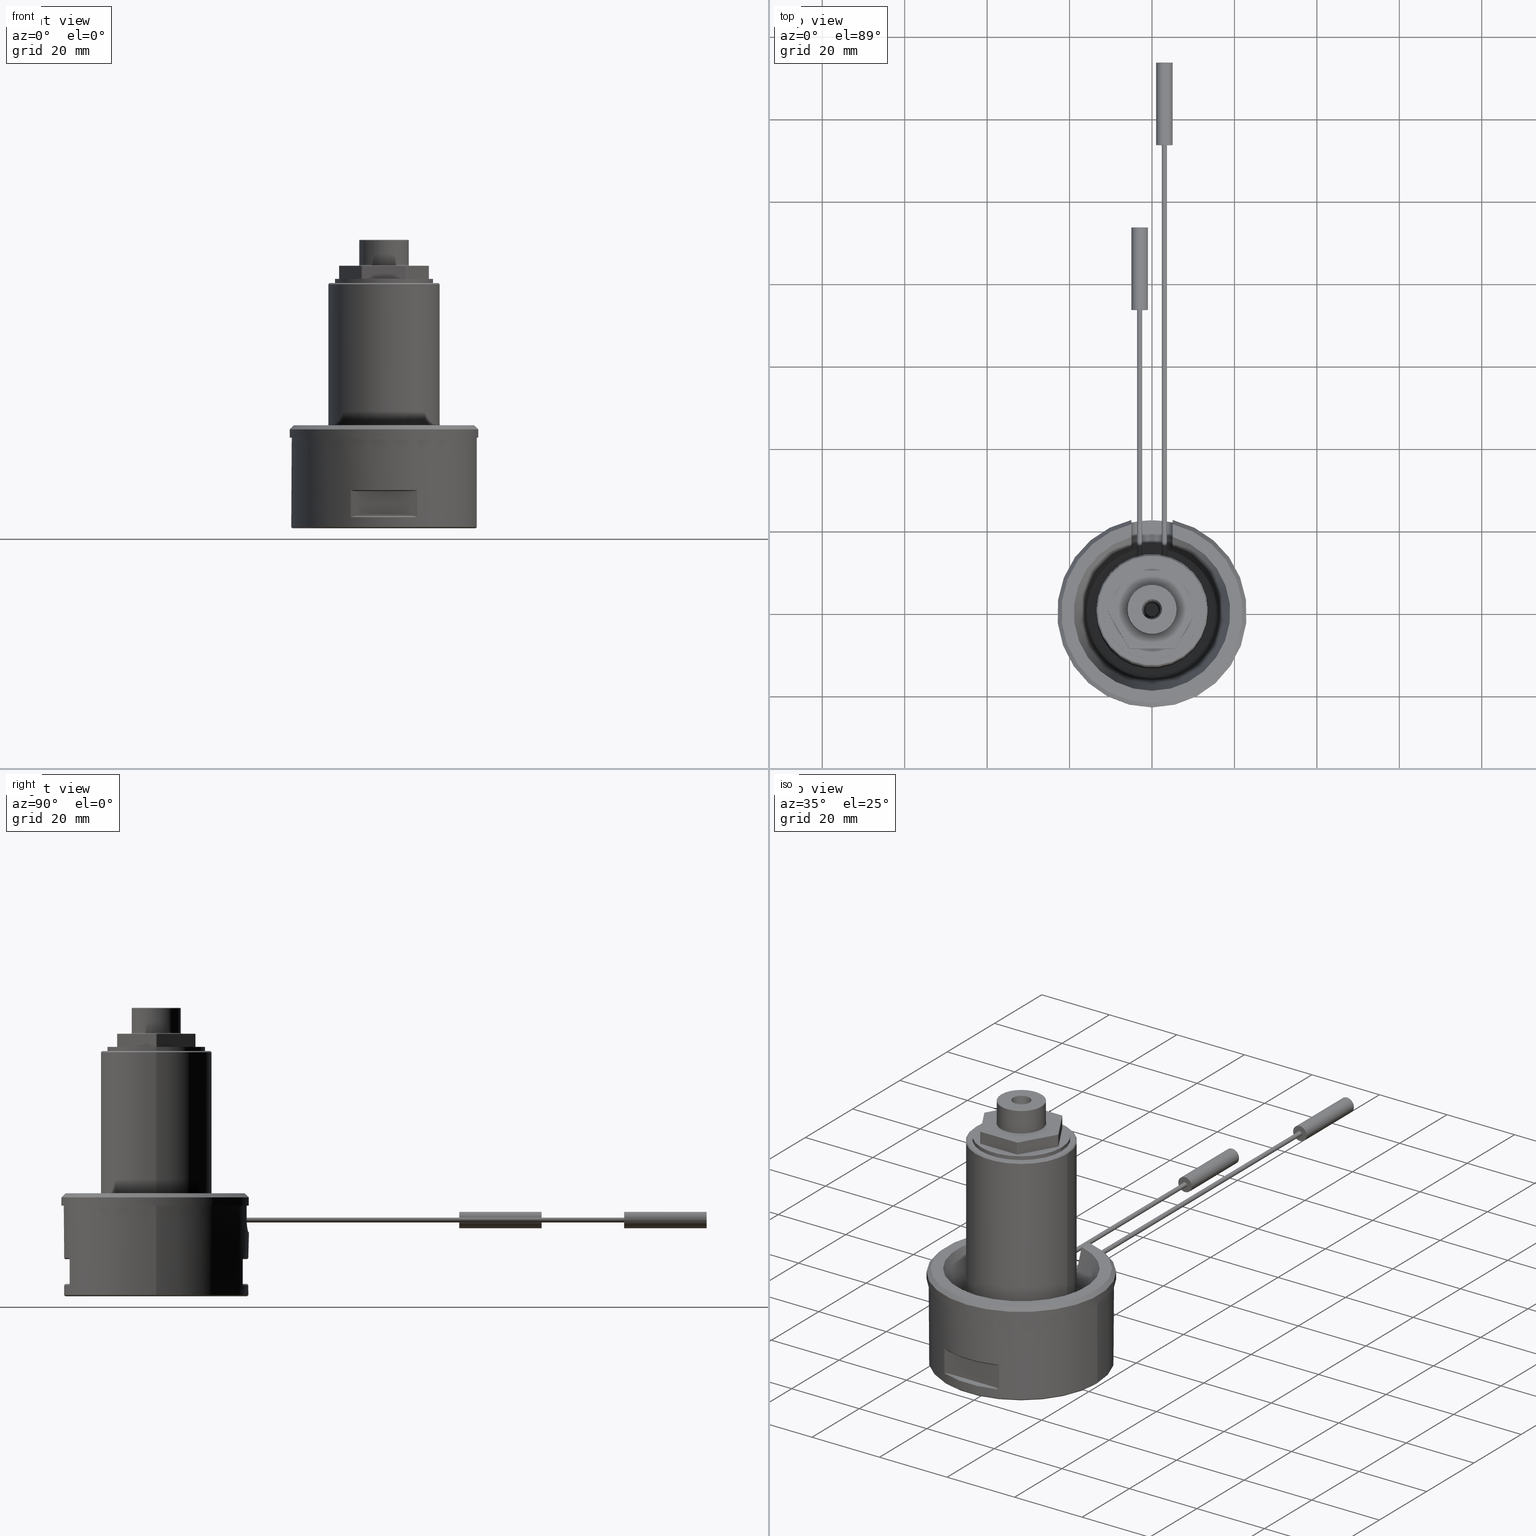
[diagram: canonical four-view strip — front | top / right | iso, engineering-drawing reading convention]
A machine part, canonical four-view strip (front | top / right | iso — engineering-drawing reading convention). The complete STEP part file that produces these views, byte-faithful:
ISO-10303-21;
HEADER;
/* Generated by software containing ST-Developer
 * from STEP Tools, Inc. (www.steptools.com) 
 */
/* OPTION: using custom schema-name function */

FILE_DESCRIPTION(
/* description */ (''),
/* implementation_level */ '2;1');

FILE_NAME(
/* name */ 'HSCL45S12A.stp',
/* time_stamp */ '2022-11-22T16:04:53+09:00',
/* author */ (''),
/* organization */ (''),
/* preprocessor_version */ 'ST-DEVELOPER v18.102',
/* originating_system */ 'SIEMENS PLM Software NX 2023',
/* authorisation */ '');

FILE_SCHEMA (('AUTOMOTIVE_DESIGN { 1 0 10303 214 3 1 1 1 }'));
ENDSEC;

DATA;
#10=SHAPE_REPRESENTATION_RELATIONSHIP('None',
'relationship between HSCL45S12A-None and HSCL45S12A-None',#22,#11);
#11=ADVANCED_BREP_SHAPE_REPRESENTATION('HSCL45S12A-None',(#46,#47,#48),
#1768);
#12=SHAPE_DEFINITION_REPRESENTATION(#13,#22);
#13=PRODUCT_DEFINITION_SHAPE('','',#14);
#14=PRODUCT_DEFINITION(' ','',#16,#15);
#15=PRODUCT_DEFINITION_CONTEXT('part definition',#21,'design');
#16=PRODUCT_DEFINITION_FORMATION_WITH_SPECIFIED_SOURCE(' ',' ',#18,
 .NOT_KNOWN.);
#17=PRODUCT_RELATED_PRODUCT_CATEGORY('part','',(#18));
#18=PRODUCT('HSCL45S12A','HSCL45S12A',' ',(#19));
#19=PRODUCT_CONTEXT(' ',#21,'mechanical');
#20=APPLICATION_PROTOCOL_DEFINITION('international standard',
'automotive_design',2010,#21);
#21=APPLICATION_CONTEXT(
'core data for automotive mechanical design processes');
#22=SHAPE_REPRESENTATION('HSCL45S12A-None',(#974),#1768);
#23=PRESENTATION_LAYER_ASSIGNMENT('1','Layer 1',(#46,#47,#48));
#24=STYLED_ITEM('',(#27),#46);
#25=STYLED_ITEM('',(#28),#47);
#26=STYLED_ITEM('',(#29),#48);
#27=PRESENTATION_STYLE_ASSIGNMENT((#30));
#28=PRESENTATION_STYLE_ASSIGNMENT((#31));
#29=PRESENTATION_STYLE_ASSIGNMENT((#32));
#30=SURFACE_STYLE_USAGE(.BOTH.,#33);
#31=SURFACE_STYLE_USAGE(.BOTH.,#34);
#32=SURFACE_STYLE_USAGE(.BOTH.,#35);
#33=SURFACE_SIDE_STYLE('',(#36));
#34=SURFACE_SIDE_STYLE('',(#37));
#35=SURFACE_SIDE_STYLE('',(#38));
#36=SURFACE_STYLE_FILL_AREA(#39);
#37=SURFACE_STYLE_FILL_AREA(#40);
#38=SURFACE_STYLE_FILL_AREA(#41);
#39=FILL_AREA_STYLE('',(#42));
#40=FILL_AREA_STYLE('',(#43));
#41=FILL_AREA_STYLE('',(#44));
#42=FILL_AREA_STYLE_COLOUR('',#45);
#43=FILL_AREA_STYLE_COLOUR('',#45);
#44=FILL_AREA_STYLE_COLOUR('',#45);
#45=COLOUR_RGB('medium steel',0.611764705882353,0.658823529411765,0.670588235294118);
#46=MANIFOLD_SOLID_BREP('',#49);
#47=MANIFOLD_SOLID_BREP('',#50);
#48=MANIFOLD_SOLID_BREP('',#51);
#49=CLOSED_SHELL('',(#142,#143,#144,#145,#146,#147,#148,#149,#150,#151,
#152,#153,#154,#155,#156,#157,#158,#159,#160,#161,#162,#163,#164,#165,#166,
#167,#168,#169,#170,#171,#172,#173,#174,#175,#176,#177,#178,#179,#180,#181,
#182,#183,#184,#185,#186,#187,#188,#189,#190,#191,#192,#193,#194,#195,#196));
#50=CLOSED_SHELL('',(#197,#198,#199,#200,#201));
#51=CLOSED_SHELL('',(#202,#203,#204,#205,#206));
#52=SPHERICAL_SURFACE('',#1026,11.);
#53=CONICAL_SURFACE('',#1011,15.9573329734641,18.7599999999998);
#54=CONICAL_SURFACE('',#1018,14.0000000000001,44.9999999999999);
#55=CONICAL_SURFACE('',#1022,4.74991933212937,29.9999999997446);
#56=CONICAL_SURFACE('',#1035,2.4447030463428,4.99999999999999);
#57=CONICAL_SURFACE('',#1071,22.2,45.0000000000002);
#58=CONICAL_SURFACE('',#1072,22.2,45.0000000000002);
#59=CONICAL_SURFACE('',#1073,22.2,45.0000000000002);
#60=CONICAL_SURFACE('',#1074,22.2,45.0000000000002);
#61=CONICAL_SURFACE('',#1075,22.5,45.0000000000002);
#62=CONICAL_SURFACE('',#1076,13.2,44.9999999999997);
#63=CONICAL_SURFACE('',#1077,22.,45.);
#64=TOROIDAL_SURFACE('',#1009,15.199833762822,0.8);
#65=TOROIDAL_SURFACE('',#1029,11.9289321881346,5.);
#66=TOROIDAL_SURFACE('',#1069,6.2,0.2);
#67=TOROIDAL_SURFACE('',#1070,5.8,0.2);
#68=B_SPLINE_CURVE_WITH_KNOTS('',3,(#1469,#1470,#1471,#1472,#1473,#1474,
#1475,#1476,#1477,#1478,#1479,#1480,#1481,#1482,#1483,#1484),
 .UNSPECIFIED.,.F.,.F.,(4,3,3,3,3,4),(0.,0.210382546729296,0.420567258541741,
0.633779608703615,0.850966171544662,1.),.UNSPECIFIED.);
#69=B_SPLINE_CURVE_WITH_KNOTS('',3,(#1488,#1489,#1490,#1491,#1492,#1493,
#1494,#1495,#1496,#1497,#1498,#1499,#1500,#1501,#1502,#1503),
 .UNSPECIFIED.,.F.,.F.,(4,3,3,3,3,4),(0.,0.215733159336232,0.43133218634288,
0.64878656298699,0.86532988433574,1.),.UNSPECIFIED.);
#70=B_SPLINE_CURVE_WITH_KNOTS('',3,(#1524,#1525,#1526,#1527,#1528,#1529,
#1530,#1531,#1532,#1533,#1534,#1535,#1536),.UNSPECIFIED.,.F.,.F.,(4,3,3,
3,4),(0.,0.00583026885081895,0.111522525286211,0.626412330787777,1.),
 .UNSPECIFIED.);
#71=B_SPLINE_CURVE_WITH_KNOTS('',3,(#1540,#1541,#1542,#1543,#1544,#1545,
#1546,#1547,#1548,#1549,#1550,#1551,#1552),.UNSPECIFIED.,.F.,.F.,(4,3,3,
3,4),(0.,0.373587669212222,0.888477474713787,0.994169731149181,1.),
 .UNSPECIFIED.);
#72=B_SPLINE_CURVE_WITH_KNOTS('',3,(#1554,#1555,#1556,#1557,#1558,#1559,
#1560,#1561,#1562,#1563),.UNSPECIFIED.,.F.,.F.,(4,3,3,4),(0.,0.32770799258652,
0.655290656848575,1.),.UNSPECIFIED.);
#73=B_SPLINE_CURVE_WITH_KNOTS('',3,(#1565,#1566,#1567,#1568,#1569,#1570,
#1571),.UNSPECIFIED.,.F.,.F.,(4,3,4),(0.,0.718508524364149,1.),
 .UNSPECIFIED.);
#74=B_SPLINE_CURVE_WITH_KNOTS('',3,(#1575,#1576,#1577,#1578),
 .UNSPECIFIED.,.F.,.F.,(4,4),(0.,1.),.UNSPECIFIED.);
#75=B_SPLINE_CURVE_WITH_KNOTS('',3,(#1580,#1581,#1582,#1583,#1584,#1585,
#1586,#1587,#1588,#1589),.UNSPECIFIED.,.F.,.F.,(4,3,3,4),(0.,0.347353954695441,
0.696050717213932,1.),.UNSPECIFIED.);
#76=B_SPLINE_CURVE_WITH_KNOTS('',3,(#1668,#1669,#1670,#1671),
 .UNSPECIFIED.,.F.,.F.,(4,4),(0.,1.),.UNSPECIFIED.);
#77=B_SPLINE_CURVE_WITH_KNOTS('',3,(#1672,#1673,#1674,#1675),
 .UNSPECIFIED.,.F.,.F.,(4,4),(0.,1.),.UNSPECIFIED.);
#78=B_SPLINE_CURVE_WITH_KNOTS('',3,(#1676,#1677,#1678,#1679),
 .UNSPECIFIED.,.F.,.F.,(4,4),(0.,1.),.UNSPECIFIED.);
#79=B_SPLINE_CURVE_WITH_KNOTS('',3,(#1680,#1681,#1682,#1683),
 .UNSPECIFIED.,.F.,.F.,(4,4),(0.,1.),.UNSPECIFIED.);
#80=B_SPLINE_CURVE_WITH_KNOTS('',3,(#1695,#1696,#1697,#1698),
 .UNSPECIFIED.,.F.,.F.,(4,4),(0.,1.),.UNSPECIFIED.);
#81=B_SPLINE_CURVE_WITH_KNOTS('',3,(#1699,#1700,#1701,#1702),
 .UNSPECIFIED.,.F.,.F.,(4,4),(0.,1.),.UNSPECIFIED.);
#82=B_SPLINE_CURVE_WITH_KNOTS('',3,(#1703,#1704,#1705,#1706),
 .UNSPECIFIED.,.F.,.F.,(4,4),(0.,1.),.UNSPECIFIED.);
#83=B_SPLINE_CURVE_WITH_KNOTS('',3,(#1707,#1708,#1709,#1710),
 .UNSPECIFIED.,.F.,.F.,(4,4),(0.,1.),.UNSPECIFIED.);
#84=B_SPLINE_CURVE_WITH_KNOTS('',3,(#1712,#1713,#1714,#1715),
 .UNSPECIFIED.,.F.,.F.,(4,4),(0.,1.),.UNSPECIFIED.);
#85=B_SPLINE_CURVE_WITH_KNOTS('',3,(#1718,#1719,#1720,#1721),
 .UNSPECIFIED.,.F.,.F.,(4,4),(0.,1.),.UNSPECIFIED.);
#86=CYLINDRICAL_SURFACE('',#984,10.9);
#87=CYLINDRICAL_SURFACE('',#986,10.9);
#88=CYLINDRICAL_SURFACE('',#988,10.9);
#89=CYLINDRICAL_SURFACE('',#990,10.9);
#90=CYLINDRICAL_SURFACE('',#992,10.9);
#91=CYLINDRICAL_SURFACE('',#994,10.9);
#92=CYLINDRICAL_SURFACE('',#1002,22.5);
#93=CYLINDRICAL_SURFACE('',#1005,23.);
#94=CYLINDRICAL_SURFACE('',#1024,2.00000000000749);
#95=CYLINDRICAL_SURFACE('',#1040,6.);
#96=CYLINDRICAL_SURFACE('',#1044,11.9);
#97=CYLINDRICAL_SURFACE('',#1048,13.5);
#98=CYLINDRICAL_SURFACE('',#1067,3.);
#99=CYLINDRICAL_SURFACE('',#1068,3.);
#100=CYLINDRICAL_SURFACE('',#1080,0.6);
#101=CYLINDRICAL_SURFACE('',#1084,2.);
#102=CYLINDRICAL_SURFACE('',#1089,0.6);
#103=CYLINDRICAL_SURFACE('',#1093,2.);
#104=FACE_OUTER_BOUND('',#384,.T.);
#105=FACE_OUTER_BOUND('',#385,.T.);
#106=FACE_OUTER_BOUND('',#386,.T.);
#107=FACE_OUTER_BOUND('',#387,.T.);
#108=FACE_OUTER_BOUND('',#388,.T.);
#109=FACE_OUTER_BOUND('',#389,.T.);
#110=FACE_OUTER_BOUND('',#394,.T.);
#111=FACE_OUTER_BOUND('',#395,.T.);
#112=FACE_OUTER_BOUND('',#396,.T.);
#113=FACE_OUTER_BOUND('',#397,.T.);
#114=FACE_OUTER_BOUND('',#398,.T.);
#115=FACE_OUTER_BOUND('',#403,.T.);
#116=FACE_OUTER_BOUND('',#416,.T.);
#117=FACE_OUTER_BOUND('',#431,.T.);
#118=FACE_OUTER_BOUND('',#432,.T.);
#119=FACE_OUTER_BOUND('',#433,.T.);
#120=FACE_OUTER_BOUND('',#434,.T.);
#121=FACE_OUTER_BOUND('',#435,.T.);
#122=FACE_OUTER_BOUND('',#436,.T.);
#123=FACE_OUTER_BOUND('',#437,.T.);
#124=FACE_OUTER_BOUND('',#438,.T.);
#125=FACE_OUTER_BOUND('',#439,.T.);
#126=FACE_OUTER_BOUND('',#440,.T.);
#127=FACE_OUTER_BOUND('',#441,.T.);
#128=FACE_OUTER_BOUND('',#442,.T.);
#129=FACE_OUTER_BOUND('',#443,.T.);
#130=FACE_OUTER_BOUND('',#444,.T.);
#131=FACE_OUTER_BOUND('',#445,.T.);
#132=FACE_OUTER_BOUND('',#446,.T.);
#133=FACE_OUTER_BOUND('',#451,.T.);
#134=FACE_OUTER_BOUND('',#452,.T.);
#135=FACE_OUTER_BOUND('',#453,.T.);
#136=FACE_OUTER_BOUND('',#454,.T.);
#137=FACE_OUTER_BOUND('',#459,.T.);
#138=FACE_OUTER_BOUND('',#462,.T.);
#139=FACE_OUTER_BOUND('',#465,.T.);
#140=FACE_OUTER_BOUND('',#470,.T.);
#141=FACE_OUTER_BOUND('',#473,.T.);
#142=ADVANCED_FACE('',(#326,#327),#207,.F.);
#143=ADVANCED_FACE('',(#104),#86,.T.);
#144=ADVANCED_FACE('',(#105),#87,.T.);
#145=ADVANCED_FACE('',(#106),#88,.T.);
#146=ADVANCED_FACE('',(#107),#89,.T.);
#147=ADVANCED_FACE('',(#108),#90,.T.);
#148=ADVANCED_FACE('',(#109),#91,.T.);
#149=ADVANCED_FACE('',(#328,#329,#330,#331),#92,.T.);
#150=ADVANCED_FACE('',(#110),#93,.T.);
#151=ADVANCED_FACE('',(#111),#208,.F.);
#152=ADVANCED_FACE('',(#112),#64,.F.);
#153=ADVANCED_FACE('',(#113),#53,.F.);
#154=ADVANCED_FACE('',(#114),#209,.F.);
#155=ADVANCED_FACE('',(#332,#333),#210,.F.);
#156=ADVANCED_FACE('',(#334,#335),#54,.F.);
#157=ADVANCED_FACE('',(#115),#211,.F.);
#158=ADVANCED_FACE('',(#336,#337),#55,.F.);
#159=ADVANCED_FACE('',(#338,#339),#94,.F.);
#160=ADVANCED_FACE('',(#340,#341),#52,.F.);
#161=ADVANCED_FACE('',(#342,#343),#212,.F.);
#162=ADVANCED_FACE('',(#344,#345),#65,.F.);
#163=ADVANCED_FACE('',(#346,#347),#213,.T.);
#164=ADVANCED_FACE('',(#116),#214,.F.);
#165=ADVANCED_FACE('',(#348,#349),#56,.F.);
#166=ADVANCED_FACE('',(#350,#351),#215,.F.);
#167=ADVANCED_FACE('',(#352,#353),#95,.T.);
#168=ADVANCED_FACE('',(#354,#355),#216,.F.);
#169=ADVANCED_FACE('',(#356,#357),#96,.T.);
#170=ADVANCED_FACE('',(#358,#359),#217,.F.);
#171=ADVANCED_FACE('',(#360,#361),#97,.T.);
#172=ADVANCED_FACE('',(#117),#218,.T.);
#173=ADVANCED_FACE('',(#118),#219,.T.);
#174=ADVANCED_FACE('',(#119),#220,.T.);
#175=ADVANCED_FACE('',(#120),#221,.T.);
#176=ADVANCED_FACE('',(#121),#222,.T.);
#177=ADVANCED_FACE('',(#122),#223,.T.);
#178=ADVANCED_FACE('',(#123),#224,.T.);
#179=ADVANCED_FACE('',(#124),#225,.T.);
#180=ADVANCED_FACE('',(#125),#226,.F.);
#181=ADVANCED_FACE('',(#126),#227,.F.);
#182=ADVANCED_FACE('',(#127),#228,.F.);
#183=ADVANCED_FACE('',(#128),#229,.F.);
#184=ADVANCED_FACE('',(#129),#230,.F.);
#185=ADVANCED_FACE('',(#130),#231,.F.);
#186=ADVANCED_FACE('',(#131),#98,.F.);
#187=ADVANCED_FACE('',(#132),#99,.F.);
#188=ADVANCED_FACE('',(#362,#363),#66,.F.);
#189=ADVANCED_FACE('',(#364,#365),#67,.T.);
#190=ADVANCED_FACE('',(#133),#57,.T.);
#191=ADVANCED_FACE('',(#134),#58,.T.);
#192=ADVANCED_FACE('',(#135),#59,.T.);
#193=ADVANCED_FACE('',(#136),#60,.T.);
#194=ADVANCED_FACE('',(#366,#367),#61,.T.);
#195=ADVANCED_FACE('',(#368,#369),#62,.T.);
#196=ADVANCED_FACE('',(#137),#63,.T.);
#197=ADVANCED_FACE('',(#370,#371),#100,.T.);
#198=ADVANCED_FACE('',(#138),#232,.F.);
#199=ADVANCED_FACE('',(#372,#373),#101,.T.);
#200=ADVANCED_FACE('',(#139),#233,.T.);
#201=ADVANCED_FACE('',(#374,#375),#234,.F.);
#202=ADVANCED_FACE('',(#376,#377),#102,.T.);
#203=ADVANCED_FACE('',(#140),#235,.F.);
#204=ADVANCED_FACE('',(#378,#379),#103,.T.);
#205=ADVANCED_FACE('',(#141),#236,.T.);
#206=ADVANCED_FACE('',(#380,#381),#237,.F.);
#207=PLANE('',#982);
#208=PLANE('',#1006);
#209=PLANE('',#1013);
#210=PLANE('',#1016);
#211=PLANE('',#1020);
#212=PLANE('',#1028);
#213=PLANE('',#1031);
#214=PLANE('',#1033);
#215=PLANE('',#1037);
#216=PLANE('',#1042);
#217=PLANE('',#1046);
#218=PLANE('',#1050);
#219=PLANE('',#1052);
#220=PLANE('',#1053);
#221=PLANE('',#1055);
#222=PLANE('',#1057);
#223=PLANE('',#1058);
#224=PLANE('',#1059);
#225=PLANE('',#1060);
#226=PLANE('',#1061);
#227=PLANE('',#1062);
#228=PLANE('',#1063);
#229=PLANE('',#1064);
#230=PLANE('',#1065);
#231=PLANE('',#1066);
#232=PLANE('',#1081);
#233=PLANE('',#1085);
#234=PLANE('',#1086);
#235=PLANE('',#1090);
#236=PLANE('',#1094);
#237=PLANE('',#1095);
#238=LINE('',#1387,#282);
#239=LINE('',#1392,#283);
#240=LINE('',#1396,#284);
#241=LINE('',#1400,#285);
#242=LINE('',#1404,#286);
#243=LINE('',#1408,#287);
#244=LINE('',#1412,#288);
#245=LINE('',#1414,#289);
#246=LINE('',#1418,#290);
#247=LINE('',#1422,#291);
#248=LINE('',#1424,#292);
#249=LINE('',#1426,#293);
#250=LINE('',#1430,#294);
#251=LINE('',#1434,#295);
#252=LINE('',#1436,#296);
#253=LINE('',#1440,#297);
#254=LINE('',#1442,#298);
#255=LINE('',#1446,#299);
#256=LINE('',#1450,#300);
#257=LINE('',#1455,#301);
#258=LINE('',#1458,#302);
#259=LINE('',#1463,#303);
#260=LINE('',#1466,#304);
#261=LINE('',#1505,#305);
#262=LINE('',#1509,#306);
#263=LINE('',#1514,#307);
#264=LINE('',#1518,#308);
#265=LINE('',#1519,#309);
#266=LINE('',#1591,#310);
#267=LINE('',#1595,#311);
#268=LINE('',#1621,#312);
#269=LINE('',#1622,#313);
#270=LINE('',#1640,#314);
#271=LINE('',#1641,#315);
#272=LINE('',#1642,#316);
#273=LINE('',#1643,#317);
#274=LINE('',#1644,#318);
#275=LINE('',#1645,#319);
#276=LINE('',#1658,#320);
#277=LINE('',#1663,#321);
#278=LINE('',#1685,#322);
#279=LINE('',#1690,#323);
#280=LINE('',#1716,#324);
#281=LINE('',#1722,#325);
#282=VECTOR('',#1100,1.);
#283=VECTOR('',#1103,1.);
#284=VECTOR('',#1106,1.);
#285=VECTOR('',#1109,1.);
#286=VECTOR('',#1112,1.);
#287=VECTOR('',#1115,1.);
#288=VECTOR('',#1120,1.);
#289=VECTOR('',#1121,1.);
#290=VECTOR('',#1126,1.);
#291=VECTOR('',#1129,1.);
#292=VECTOR('',#1132,1.);
#293=VECTOR('',#1133,1.);
#294=VECTOR('',#1138,1.);
#295=VECTOR('',#1141,1.);
#296=VECTOR('',#1144,1.);
#297=VECTOR('',#1147,1.);
#298=VECTOR('',#1150,1.);
#299=VECTOR('',#1153,1.);
#300=VECTOR('',#1158,1.);
#301=VECTOR('',#1161,1.);
#302=VECTOR('',#1164,1.);
#303=VECTOR('',#1167,1.);
#304=VECTOR('',#1170,1.);
#305=VECTOR('',#1173,1.);
#306=VECTOR('',#1178,1.);
#307=VECTOR('',#1181,1.);
#308=VECTOR('',#1186,1.);
#309=VECTOR('',#1187,1.);
#310=VECTOR('',#1200,1.);
#311=VECTOR('',#1203,1.);
#312=VECTOR('',#1238,1.);
#313=VECTOR('',#1239,1.);
#314=VECTOR('',#1262,1.);
#315=VECTOR('',#1263,1.);
#316=VECTOR('',#1264,1.);
#317=VECTOR('',#1265,1.);
#318=VECTOR('',#1266,1.);
#319=VECTOR('',#1267,1.);
#320=VECTOR('',#1284,1.);
#321=VECTOR('',#1289,1.);
#322=VECTOR('',#1296,1.);
#323=VECTOR('',#1301,1.);
#324=VECTOR('',#1308,1.);
#325=VECTOR('',#1311,1.);
#326=FACE_BOUND('',#382,.T.);
#327=FACE_BOUND('',#383,.T.);
#328=FACE_BOUND('',#390,.T.);
#329=FACE_BOUND('',#391,.T.);
#330=FACE_BOUND('',#392,.T.);
#331=FACE_BOUND('',#393,.T.);
#332=FACE_BOUND('',#399,.T.);
#333=FACE_BOUND('',#400,.T.);
#334=FACE_BOUND('',#401,.T.);
#335=FACE_BOUND('',#402,.T.);
#336=FACE_BOUND('',#404,.T.);
#337=FACE_BOUND('',#405,.T.);
#338=FACE_BOUND('',#406,.T.);
#339=FACE_BOUND('',#407,.T.);
#340=FACE_BOUND('',#408,.T.);
#341=FACE_BOUND('',#409,.T.);
#342=FACE_BOUND('',#410,.T.);
#343=FACE_BOUND('',#411,.T.);
#344=FACE_BOUND('',#412,.T.);
#345=FACE_BOUND('',#413,.T.);
#346=FACE_BOUND('',#414,.T.);
#347=FACE_BOUND('',#415,.T.);
#348=FACE_BOUND('',#417,.T.);
#349=FACE_BOUND('',#418,.T.);
#350=FACE_BOUND('',#419,.T.);
#351=FACE_BOUND('',#420,.T.);
#352=FACE_BOUND('',#421,.T.);
#353=FACE_BOUND('',#422,.T.);
#354=FACE_BOUND('',#423,.T.);
#355=FACE_BOUND('',#424,.T.);
#356=FACE_BOUND('',#425,.T.);
#357=FACE_BOUND('',#426,.T.);
#358=FACE_BOUND('',#427,.T.);
#359=FACE_BOUND('',#428,.T.);
#360=FACE_BOUND('',#429,.T.);
#361=FACE_BOUND('',#430,.T.);
#362=FACE_BOUND('',#447,.T.);
#363=FACE_BOUND('',#448,.T.);
#364=FACE_BOUND('',#449,.T.);
#365=FACE_BOUND('',#450,.T.);
#366=FACE_BOUND('',#455,.T.);
#367=FACE_BOUND('',#456,.T.);
#368=FACE_BOUND('',#457,.T.);
#369=FACE_BOUND('',#458,.T.);
#370=FACE_BOUND('',#460,.T.);
#371=FACE_BOUND('',#461,.T.);
#372=FACE_BOUND('',#463,.T.);
#373=FACE_BOUND('',#464,.T.);
#374=FACE_BOUND('',#466,.T.);
#375=FACE_BOUND('',#467,.T.);
#376=FACE_BOUND('',#468,.T.);
#377=FACE_BOUND('',#469,.T.);
#378=FACE_BOUND('',#471,.T.);
#379=FACE_BOUND('',#472,.T.);
#380=FACE_BOUND('',#474,.T.);
#381=FACE_BOUND('',#475,.T.);
#382=EDGE_LOOP('',(#476));
#383=EDGE_LOOP('',(#477,#478,#479,#480,#481,#482,#483,#484,#485,#486,#487,
#488));
#384=EDGE_LOOP('',(#489,#490,#491,#492));
#385=EDGE_LOOP('',(#493,#494,#495,#496));
#386=EDGE_LOOP('',(#497,#498,#499,#500));
#387=EDGE_LOOP('',(#501,#502,#503,#504));
#388=EDGE_LOOP('',(#505,#506,#507,#508));
#389=EDGE_LOOP('',(#509,#510,#511,#512));
#390=EDGE_LOOP('',(#513));
#391=EDGE_LOOP('',(#514,#515,#516,#517));
#392=EDGE_LOOP('',(#518,#519,#520,#521));
#393=EDGE_LOOP('',(#522,#523,#524,#525,#526,#527));
#394=EDGE_LOOP('',(#528,#529,#530,#531));
#395=EDGE_LOOP('',(#532,#533,#534,#535));
#396=EDGE_LOOP('',(#536,#537,#538,#539));
#397=EDGE_LOOP('',(#540,#541,#542,#543,#544,#545));
#398=EDGE_LOOP('',(#546,#547,#548,#549));
#399=EDGE_LOOP('',(#550));
#400=EDGE_LOOP('',(#551));
#401=EDGE_LOOP('',(#552));
#402=EDGE_LOOP('',(#553));
#403=EDGE_LOOP('',(#554));
#404=EDGE_LOOP('',(#555));
#405=EDGE_LOOP('',(#556));
#406=EDGE_LOOP('',(#557));
#407=EDGE_LOOP('',(#558));
#408=EDGE_LOOP('',(#559));
#409=EDGE_LOOP('',(#560));
#410=EDGE_LOOP('',(#561));
#411=EDGE_LOOP('',(#562));
#412=EDGE_LOOP('',(#563));
#413=EDGE_LOOP('',(#564));
#414=EDGE_LOOP('',(#565,#566,#567,#568));
#415=EDGE_LOOP('',(#569));
#416=EDGE_LOOP('',(#570));
#417=EDGE_LOOP('',(#571));
#418=EDGE_LOOP('',(#572));
#419=EDGE_LOOP('',(#573));
#420=EDGE_LOOP('',(#574));
#421=EDGE_LOOP('',(#575));
#422=EDGE_LOOP('',(#576));
#423=EDGE_LOOP('',(#577,#578,#579,#580,#581,#582,#583,#584,#585,#586,#587,
#588));
#424=EDGE_LOOP('',(#589));
#425=EDGE_LOOP('',(#590));
#426=EDGE_LOOP('',(#591));
#427=EDGE_LOOP('',(#592));
#428=EDGE_LOOP('',(#593));
#429=EDGE_LOOP('',(#594));
#430=EDGE_LOOP('',(#595));
#431=EDGE_LOOP('',(#596,#597));
#432=EDGE_LOOP('',(#598,#599));
#433=EDGE_LOOP('',(#600,#601,#602,#603,#604,#605,#606,#607));
#434=EDGE_LOOP('',(#608,#609));
#435=EDGE_LOOP('',(#610,#611));
#436=EDGE_LOOP('',(#612,#613,#614,#615,#616,#617,#618,#619));
#437=EDGE_LOOP('',(#620,#621,#622,#623,#624,#625,#626));
#438=EDGE_LOOP('',(#627,#628,#629,#630,#631,#632,#633));
#439=EDGE_LOOP('',(#634,#635,#636,#637));
#440=EDGE_LOOP('',(#638,#639,#640,#641));
#441=EDGE_LOOP('',(#642,#643,#644,#645));
#442=EDGE_LOOP('',(#646,#647,#648,#649));
#443=EDGE_LOOP('',(#650,#651,#652,#653));
#444=EDGE_LOOP('',(#654,#655,#656,#657));
#445=EDGE_LOOP('',(#658,#659,#660,#661,#662));
#446=EDGE_LOOP('',(#663,#664,#665,#666,#667));
#447=EDGE_LOOP('',(#668));
#448=EDGE_LOOP('',(#669));
#449=EDGE_LOOP('',(#670));
#450=EDGE_LOOP('',(#671));
#451=EDGE_LOOP('',(#672,#673,#674,#675));
#452=EDGE_LOOP('',(#676,#677,#678,#679));
#453=EDGE_LOOP('',(#680,#681,#682,#683));
#454=EDGE_LOOP('',(#684,#685,#686,#687));
#455=EDGE_LOOP('',(#688));
#456=EDGE_LOOP('',(#689));
#457=EDGE_LOOP('',(#690));
#458=EDGE_LOOP('',(#691));
#459=EDGE_LOOP('',(#692,#693,#694,#695));
#460=EDGE_LOOP('',(#696));
#461=EDGE_LOOP('',(#697));
#462=EDGE_LOOP('',(#698));
#463=EDGE_LOOP('',(#699));
#464=EDGE_LOOP('',(#700));
#465=EDGE_LOOP('',(#701));
#466=EDGE_LOOP('',(#702));
#467=EDGE_LOOP('',(#703));
#468=EDGE_LOOP('',(#704));
#469=EDGE_LOOP('',(#705));
#470=EDGE_LOOP('',(#706));
#471=EDGE_LOOP('',(#707));
#472=EDGE_LOOP('',(#708));
#473=EDGE_LOOP('',(#709));
#474=EDGE_LOOP('',(#710));
#475=EDGE_LOOP('',(#711));
#476=ORIENTED_EDGE('',*,*,#800,.T.);
#477=ORIENTED_EDGE('',*,*,#801,.F.);
#478=ORIENTED_EDGE('',*,*,#802,.T.);
#479=ORIENTED_EDGE('',*,*,#803,.F.);
#480=ORIENTED_EDGE('',*,*,#804,.T.);
#481=ORIENTED_EDGE('',*,*,#805,.F.);
#482=ORIENTED_EDGE('',*,*,#806,.T.);
#483=ORIENTED_EDGE('',*,*,#807,.F.);
#484=ORIENTED_EDGE('',*,*,#808,.T.);
#485=ORIENTED_EDGE('',*,*,#809,.F.);
#486=ORIENTED_EDGE('',*,*,#810,.T.);
#487=ORIENTED_EDGE('',*,*,#811,.F.);
#488=ORIENTED_EDGE('',*,*,#812,.T.);
#489=ORIENTED_EDGE('',*,*,#813,.F.);
#490=ORIENTED_EDGE('',*,*,#812,.F.);
#491=ORIENTED_EDGE('',*,*,#814,.F.);
#492=ORIENTED_EDGE('',*,*,#815,.T.);
#493=ORIENTED_EDGE('',*,*,#816,.F.);
#494=ORIENTED_EDGE('',*,*,#817,.T.);
#495=ORIENTED_EDGE('',*,*,#818,.T.);
#496=ORIENTED_EDGE('',*,*,#802,.F.);
#497=ORIENTED_EDGE('',*,*,#819,.F.);
#498=ORIENTED_EDGE('',*,*,#810,.F.);
#499=ORIENTED_EDGE('',*,*,#820,.F.);
#500=ORIENTED_EDGE('',*,*,#821,.T.);
#501=ORIENTED_EDGE('',*,*,#804,.F.);
#502=ORIENTED_EDGE('',*,*,#822,.T.);
#503=ORIENTED_EDGE('',*,*,#823,.T.);
#504=ORIENTED_EDGE('',*,*,#824,.T.);
#505=ORIENTED_EDGE('',*,*,#806,.F.);
#506=ORIENTED_EDGE('',*,*,#825,.T.);
#507=ORIENTED_EDGE('',*,*,#826,.T.);
#508=ORIENTED_EDGE('',*,*,#827,.T.);
#509=ORIENTED_EDGE('',*,*,#808,.F.);
#510=ORIENTED_EDGE('',*,*,#828,.T.);
#511=ORIENTED_EDGE('',*,*,#829,.T.);
#512=ORIENTED_EDGE('',*,*,#830,.F.);
#513=ORIENTED_EDGE('',*,*,#831,.T.);
#514=ORIENTED_EDGE('',*,*,#832,.F.);
#515=ORIENTED_EDGE('',*,*,#833,.T.);
#516=ORIENTED_EDGE('',*,*,#834,.F.);
#517=ORIENTED_EDGE('',*,*,#835,.T.);
#518=ORIENTED_EDGE('',*,*,#836,.F.);
#519=ORIENTED_EDGE('',*,*,#837,.T.);
#520=ORIENTED_EDGE('',*,*,#838,.F.);
#521=ORIENTED_EDGE('',*,*,#839,.T.);
#522=ORIENTED_EDGE('',*,*,#840,.F.);
#523=ORIENTED_EDGE('',*,*,#841,.T.);
#524=ORIENTED_EDGE('',*,*,#842,.T.);
#525=ORIENTED_EDGE('',*,*,#843,.T.);
#526=ORIENTED_EDGE('',*,*,#844,.F.);
#527=ORIENTED_EDGE('',*,*,#845,.F.);
#528=ORIENTED_EDGE('',*,*,#846,.F.);
#529=ORIENTED_EDGE('',*,*,#847,.T.);
#530=ORIENTED_EDGE('',*,*,#848,.F.);
#531=ORIENTED_EDGE('',*,*,#849,.T.);
#532=ORIENTED_EDGE('',*,*,#850,.F.);
#533=ORIENTED_EDGE('',*,*,#845,.T.);
#534=ORIENTED_EDGE('',*,*,#851,.F.);
#535=ORIENTED_EDGE('',*,*,#849,.F.);
#536=ORIENTED_EDGE('',*,*,#852,.T.);
#537=ORIENTED_EDGE('',*,*,#853,.T.);
#538=ORIENTED_EDGE('',*,*,#854,.F.);
#539=ORIENTED_EDGE('',*,*,#855,.T.);
#540=ORIENTED_EDGE('',*,*,#854,.T.);
#541=ORIENTED_EDGE('',*,*,#856,.T.);
#542=ORIENTED_EDGE('',*,*,#857,.T.);
#543=ORIENTED_EDGE('',*,*,#858,.T.);
#544=ORIENTED_EDGE('',*,*,#859,.T.);
#545=ORIENTED_EDGE('',*,*,#860,.T.);
#546=ORIENTED_EDGE('',*,*,#861,.T.);
#547=ORIENTED_EDGE('',*,*,#862,.T.);
#548=ORIENTED_EDGE('',*,*,#863,.F.);
#549=ORIENTED_EDGE('',*,*,#858,.F.);
#550=ORIENTED_EDGE('',*,*,#864,.T.);
#551=ORIENTED_EDGE('',*,*,#865,.T.);
#552=ORIENTED_EDGE('',*,*,#866,.T.);
#553=ORIENTED_EDGE('',*,*,#865,.F.);
#554=ORIENTED_EDGE('',*,*,#867,.T.);
#555=ORIENTED_EDGE('',*,*,#868,.T.);
#556=ORIENTED_EDGE('',*,*,#867,.F.);
#557=ORIENTED_EDGE('',*,*,#869,.T.);
#558=ORIENTED_EDGE('',*,*,#868,.F.);
#559=ORIENTED_EDGE('',*,*,#870,.T.);
#560=ORIENTED_EDGE('',*,*,#869,.F.);
#561=ORIENTED_EDGE('',*,*,#871,.T.);
#562=ORIENTED_EDGE('',*,*,#870,.F.);
#563=ORIENTED_EDGE('',*,*,#866,.F.);
#564=ORIENTED_EDGE('',*,*,#871,.F.);
#565=ORIENTED_EDGE('',*,*,#842,.F.);
#566=ORIENTED_EDGE('',*,*,#872,.T.);
#567=ORIENTED_EDGE('',*,*,#852,.F.);
#568=ORIENTED_EDGE('',*,*,#873,.T.);
#569=ORIENTED_EDGE('',*,*,#874,.F.);
#570=ORIENTED_EDGE('',*,*,#875,.T.);
#571=ORIENTED_EDGE('',*,*,#875,.F.);
#572=ORIENTED_EDGE('',*,*,#876,.T.);
#573=ORIENTED_EDGE('',*,*,#877,.T.);
#574=ORIENTED_EDGE('',*,*,#876,.F.);
#575=ORIENTED_EDGE('',*,*,#878,.T.);
#576=ORIENTED_EDGE('',*,*,#879,.T.);
#577=ORIENTED_EDGE('',*,*,#821,.F.);
#578=ORIENTED_EDGE('',*,*,#880,.T.);
#579=ORIENTED_EDGE('',*,*,#829,.F.);
#580=ORIENTED_EDGE('',*,*,#881,.T.);
#581=ORIENTED_EDGE('',*,*,#826,.F.);
#582=ORIENTED_EDGE('',*,*,#882,.T.);
#583=ORIENTED_EDGE('',*,*,#823,.F.);
#584=ORIENTED_EDGE('',*,*,#883,.T.);
#585=ORIENTED_EDGE('',*,*,#817,.F.);
#586=ORIENTED_EDGE('',*,*,#884,.T.);
#587=ORIENTED_EDGE('',*,*,#815,.F.);
#588=ORIENTED_EDGE('',*,*,#885,.T.);
#589=ORIENTED_EDGE('',*,*,#886,.T.);
#590=ORIENTED_EDGE('',*,*,#886,.F.);
#591=ORIENTED_EDGE('',*,*,#887,.T.);
#592=ORIENTED_EDGE('',*,*,#888,.T.);
#593=ORIENTED_EDGE('',*,*,#887,.F.);
#594=ORIENTED_EDGE('',*,*,#889,.T.);
#595=ORIENTED_EDGE('',*,*,#874,.T.);
#596=ORIENTED_EDGE('',*,*,#890,.T.);
#597=ORIENTED_EDGE('',*,*,#891,.T.);
#598=ORIENTED_EDGE('',*,*,#892,.T.);
#599=ORIENTED_EDGE('',*,*,#893,.T.);
#600=ORIENTED_EDGE('',*,*,#838,.T.);
#601=ORIENTED_EDGE('',*,*,#894,.T.);
#602=ORIENTED_EDGE('',*,*,#890,.F.);
#603=ORIENTED_EDGE('',*,*,#895,.T.);
#604=ORIENTED_EDGE('',*,*,#836,.T.);
#605=ORIENTED_EDGE('',*,*,#896,.T.);
#606=ORIENTED_EDGE('',*,*,#892,.F.);
#607=ORIENTED_EDGE('',*,*,#897,.T.);
#608=ORIENTED_EDGE('',*,*,#898,.F.);
#609=ORIENTED_EDGE('',*,*,#899,.T.);
#610=ORIENTED_EDGE('',*,*,#900,.F.);
#611=ORIENTED_EDGE('',*,*,#901,.T.);
#612=ORIENTED_EDGE('',*,*,#832,.T.);
#613=ORIENTED_EDGE('',*,*,#902,.T.);
#614=ORIENTED_EDGE('',*,*,#900,.T.);
#615=ORIENTED_EDGE('',*,*,#903,.T.);
#616=ORIENTED_EDGE('',*,*,#834,.T.);
#617=ORIENTED_EDGE('',*,*,#904,.T.);
#618=ORIENTED_EDGE('',*,*,#898,.T.);
#619=ORIENTED_EDGE('',*,*,#905,.T.);
#620=ORIENTED_EDGE('',*,*,#848,.T.);
#621=ORIENTED_EDGE('',*,*,#906,.T.);
#622=ORIENTED_EDGE('',*,*,#861,.F.);
#623=ORIENTED_EDGE('',*,*,#857,.F.);
#624=ORIENTED_EDGE('',*,*,#907,.T.);
#625=ORIENTED_EDGE('',*,*,#840,.T.);
#626=ORIENTED_EDGE('',*,*,#850,.T.);
#627=ORIENTED_EDGE('',*,*,#863,.T.);
#628=ORIENTED_EDGE('',*,*,#908,.T.);
#629=ORIENTED_EDGE('',*,*,#846,.T.);
#630=ORIENTED_EDGE('',*,*,#851,.T.);
#631=ORIENTED_EDGE('',*,*,#844,.T.);
#632=ORIENTED_EDGE('',*,*,#909,.T.);
#633=ORIENTED_EDGE('',*,*,#859,.F.);
#634=ORIENTED_EDGE('',*,*,#809,.T.);
#635=ORIENTED_EDGE('',*,*,#830,.T.);
#636=ORIENTED_EDGE('',*,*,#880,.F.);
#637=ORIENTED_EDGE('',*,*,#820,.T.);
#638=ORIENTED_EDGE('',*,*,#807,.T.);
#639=ORIENTED_EDGE('',*,*,#827,.F.);
#640=ORIENTED_EDGE('',*,*,#881,.F.);
#641=ORIENTED_EDGE('',*,*,#828,.F.);
#642=ORIENTED_EDGE('',*,*,#805,.T.);
#643=ORIENTED_EDGE('',*,*,#824,.F.);
#644=ORIENTED_EDGE('',*,*,#882,.F.);
#645=ORIENTED_EDGE('',*,*,#825,.F.);
#646=ORIENTED_EDGE('',*,*,#803,.T.);
#647=ORIENTED_EDGE('',*,*,#818,.F.);
#648=ORIENTED_EDGE('',*,*,#883,.F.);
#649=ORIENTED_EDGE('',*,*,#822,.F.);
#650=ORIENTED_EDGE('',*,*,#811,.T.);
#651=ORIENTED_EDGE('',*,*,#819,.T.);
#652=ORIENTED_EDGE('',*,*,#885,.F.);
#653=ORIENTED_EDGE('',*,*,#814,.T.);
#654=ORIENTED_EDGE('',*,*,#801,.T.);
#655=ORIENTED_EDGE('',*,*,#813,.T.);
#656=ORIENTED_EDGE('',*,*,#884,.F.);
#657=ORIENTED_EDGE('',*,*,#816,.T.);
#658=ORIENTED_EDGE('',*,*,#853,.F.);
#659=ORIENTED_EDGE('',*,*,#872,.F.);
#660=ORIENTED_EDGE('',*,*,#841,.F.);
#661=ORIENTED_EDGE('',*,*,#907,.F.);
#662=ORIENTED_EDGE('',*,*,#856,.F.);
#663=ORIENTED_EDGE('',*,*,#860,.F.);
#664=ORIENTED_EDGE('',*,*,#909,.F.);
#665=ORIENTED_EDGE('',*,*,#843,.F.);
#666=ORIENTED_EDGE('',*,*,#873,.F.);
#667=ORIENTED_EDGE('',*,*,#855,.F.);
#668=ORIENTED_EDGE('',*,*,#800,.F.);
#669=ORIENTED_EDGE('',*,*,#878,.F.);
#670=ORIENTED_EDGE('',*,*,#879,.F.);
#671=ORIENTED_EDGE('',*,*,#877,.F.);
#672=ORIENTED_EDGE('',*,*,#904,.F.);
#673=ORIENTED_EDGE('',*,*,#833,.F.);
#674=ORIENTED_EDGE('',*,*,#905,.F.);
#675=ORIENTED_EDGE('',*,*,#899,.F.);
#676=ORIENTED_EDGE('',*,*,#902,.F.);
#677=ORIENTED_EDGE('',*,*,#835,.F.);
#678=ORIENTED_EDGE('',*,*,#903,.F.);
#679=ORIENTED_EDGE('',*,*,#901,.F.);
#680=ORIENTED_EDGE('',*,*,#894,.F.);
#681=ORIENTED_EDGE('',*,*,#837,.F.);
#682=ORIENTED_EDGE('',*,*,#895,.F.);
#683=ORIENTED_EDGE('',*,*,#891,.F.);
#684=ORIENTED_EDGE('',*,*,#896,.F.);
#685=ORIENTED_EDGE('',*,*,#839,.F.);
#686=ORIENTED_EDGE('',*,*,#897,.F.);
#687=ORIENTED_EDGE('',*,*,#893,.F.);
#688=ORIENTED_EDGE('',*,*,#864,.F.);
#689=ORIENTED_EDGE('',*,*,#831,.F.);
#690=ORIENTED_EDGE('',*,*,#889,.F.);
#691=ORIENTED_EDGE('',*,*,#888,.F.);
#692=ORIENTED_EDGE('',*,*,#906,.F.);
#693=ORIENTED_EDGE('',*,*,#847,.F.);
#694=ORIENTED_EDGE('',*,*,#908,.F.);
#695=ORIENTED_EDGE('',*,*,#862,.F.);
#696=ORIENTED_EDGE('',*,*,#910,.F.);
#697=ORIENTED_EDGE('',*,*,#911,.T.);
#698=ORIENTED_EDGE('',*,*,#911,.F.);
#699=ORIENTED_EDGE('',*,*,#912,.F.);
#700=ORIENTED_EDGE('',*,*,#913,.T.);
#701=ORIENTED_EDGE('',*,*,#912,.T.);
#702=ORIENTED_EDGE('',*,*,#910,.T.);
#703=ORIENTED_EDGE('',*,*,#913,.F.);
#704=ORIENTED_EDGE('',*,*,#914,.F.);
#705=ORIENTED_EDGE('',*,*,#915,.T.);
#706=ORIENTED_EDGE('',*,*,#915,.F.);
#707=ORIENTED_EDGE('',*,*,#916,.F.);
#708=ORIENTED_EDGE('',*,*,#917,.T.);
#709=ORIENTED_EDGE('',*,*,#916,.T.);
#710=ORIENTED_EDGE('',*,*,#914,.T.);
#711=ORIENTED_EDGE('',*,*,#917,.F.);
#712=VERTEX_POINT('',#1386);
#713=VERTEX_POINT('',#1388);
#714=VERTEX_POINT('',#1389);
#715=VERTEX_POINT('',#1391);
#716=VERTEX_POINT('',#1393);
#717=VERTEX_POINT('',#1395);
#718=VERTEX_POINT('',#1397);
#719=VERTEX_POINT('',#1399);
#720=VERTEX_POINT('',#1401);
#721=VERTEX_POINT('',#1403);
#722=VERTEX_POINT('',#1405);
#723=VERTEX_POINT('',#1407);
#724=VERTEX_POINT('',#1409);
#725=VERTEX_POINT('',#1413);
#726=VERTEX_POINT('',#1415);
#727=VERTEX_POINT('',#1419);
#728=VERTEX_POINT('',#1421);
#729=VERTEX_POINT('',#1425);
#730=VERTEX_POINT('',#1427);
#731=VERTEX_POINT('',#1431);
#732=VERTEX_POINT('',#1433);
#733=VERTEX_POINT('',#1437);
#734=VERTEX_POINT('',#1439);
#735=VERTEX_POINT('',#1443);
#736=VERTEX_POINT('',#1445);
#737=VERTEX_POINT('',#1449);
#738=VERTEX_POINT('',#1451);
#739=VERTEX_POINT('',#1452);
#740=VERTEX_POINT('',#1454);
#741=VERTEX_POINT('',#1456);
#742=VERTEX_POINT('',#1459);
#743=VERTEX_POINT('',#1460);
#744=VERTEX_POINT('',#1462);
#745=VERTEX_POINT('',#1464);
#746=VERTEX_POINT('',#1467);
#747=VERTEX_POINT('',#1468);
#748=VERTEX_POINT('',#1485);
#749=VERTEX_POINT('',#1487);
#750=VERTEX_POINT('',#1504);
#751=VERTEX_POINT('',#1506);
#752=VERTEX_POINT('',#1510);
#753=VERTEX_POINT('',#1511);
#754=VERTEX_POINT('',#1513);
#755=VERTEX_POINT('',#1515);
#756=VERTEX_POINT('',#1522);
#757=VERTEX_POINT('',#1523);
#758=VERTEX_POINT('',#1537);
#759=VERTEX_POINT('',#1539);
#760=VERTEX_POINT('',#1564);
#761=VERTEX_POINT('',#1572);
#762=VERTEX_POINT('',#1574);
#763=VERTEX_POINT('',#1579);
#764=VERTEX_POINT('',#1592);
#765=VERTEX_POINT('',#1594);
#766=VERTEX_POINT('',#1598);
#767=VERTEX_POINT('',#1600);
#768=VERTEX_POINT('',#1603);
#769=VERTEX_POINT('',#1606);
#770=VERTEX_POINT('',#1609);
#771=VERTEX_POINT('',#1612);
#772=VERTEX_POINT('',#1615);
#773=VERTEX_POINT('',#1618);
#774=VERTEX_POINT('',#1624);
#775=VERTEX_POINT('',#1627);
#776=VERTEX_POINT('',#1630);
#777=VERTEX_POINT('',#1633);
#778=VERTEX_POINT('',#1636);
#779=VERTEX_POINT('',#1638);
#780=VERTEX_POINT('',#1647);
#781=VERTEX_POINT('',#1650);
#782=VERTEX_POINT('',#1653);
#783=VERTEX_POINT('',#1656);
#784=VERTEX_POINT('',#1659);
#785=VERTEX_POINT('',#1660);
#786=VERTEX_POINT('',#1664);
#787=VERTEX_POINT('',#1665);
#788=VERTEX_POINT('',#1686);
#789=VERTEX_POINT('',#1687);
#790=VERTEX_POINT('',#1691);
#791=VERTEX_POINT('',#1692);
#792=VERTEX_POINT('',#1742);
#793=VERTEX_POINT('',#1744);
#794=VERTEX_POINT('',#1748);
#795=VERTEX_POINT('',#1750);
#796=VERTEX_POINT('',#1755);
#797=VERTEX_POINT('',#1757);
#798=VERTEX_POINT('',#1761);
#799=VERTEX_POINT('',#1763);
#800=EDGE_CURVE('',#712,#712,#918,.T.);
#801=EDGE_CURVE('',#713,#714,#238,.T.);
#802=EDGE_CURVE('',#713,#715,#919,.T.);
#803=EDGE_CURVE('',#716,#715,#239,.T.);
#804=EDGE_CURVE('',#716,#717,#920,.T.);
#805=EDGE_CURVE('',#718,#717,#240,.T.);
#806=EDGE_CURVE('',#718,#719,#921,.T.);
#807=EDGE_CURVE('',#720,#719,#241,.T.);
#808=EDGE_CURVE('',#720,#721,#922,.T.);
#809=EDGE_CURVE('',#722,#721,#242,.T.);
#810=EDGE_CURVE('',#722,#723,#923,.T.);
#811=EDGE_CURVE('',#724,#723,#243,.T.);
#812=EDGE_CURVE('',#724,#714,#924,.T.);
#813=EDGE_CURVE('',#714,#725,#244,.T.);
#814=EDGE_CURVE('',#726,#724,#245,.T.);
#815=EDGE_CURVE('',#726,#725,#925,.T.);
#816=EDGE_CURVE('',#727,#713,#246,.T.);
#817=EDGE_CURVE('',#727,#728,#926,.T.);
#818=EDGE_CURVE('',#728,#715,#247,.T.);
#819=EDGE_CURVE('',#723,#729,#248,.T.);
#820=EDGE_CURVE('',#730,#722,#249,.T.);
#821=EDGE_CURVE('',#730,#729,#927,.T.);
#822=EDGE_CURVE('',#716,#731,#250,.T.);
#823=EDGE_CURVE('',#731,#732,#928,.T.);
#824=EDGE_CURVE('',#732,#717,#251,.T.);
#825=EDGE_CURVE('',#718,#733,#252,.T.);
#826=EDGE_CURVE('',#733,#734,#929,.T.);
#827=EDGE_CURVE('',#734,#719,#253,.T.);
#828=EDGE_CURVE('',#720,#735,#254,.T.);
#829=EDGE_CURVE('',#735,#736,#930,.T.);
#830=EDGE_CURVE('',#721,#736,#255,.T.);
#831=EDGE_CURVE('',#737,#737,#931,.T.);
#832=EDGE_CURVE('',#738,#739,#256,.T.);
#833=EDGE_CURVE('',#738,#740,#932,.T.);
#834=EDGE_CURVE('',#741,#740,#257,.T.);
#835=EDGE_CURVE('',#741,#739,#933,.T.);
#836=EDGE_CURVE('',#742,#743,#258,.T.);
#837=EDGE_CURVE('',#742,#744,#934,.T.);
#838=EDGE_CURVE('',#745,#744,#259,.T.);
#839=EDGE_CURVE('',#745,#743,#935,.T.);
#840=EDGE_CURVE('',#746,#747,#260,.T.);
#841=EDGE_CURVE('',#746,#748,#68,.T.);
#842=EDGE_CURVE('',#748,#749,#936,.T.);
#843=EDGE_CURVE('',#749,#750,#69,.T.);
#844=EDGE_CURVE('',#751,#750,#261,.T.);
#845=EDGE_CURVE('',#747,#751,#937,.T.);
#846=EDGE_CURVE('',#752,#753,#262,.T.);
#847=EDGE_CURVE('',#752,#754,#938,.T.);
#848=EDGE_CURVE('',#755,#754,#263,.T.);
#849=EDGE_CURVE('',#755,#753,#939,.T.);
#850=EDGE_CURVE('',#747,#755,#264,.T.);
#851=EDGE_CURVE('',#753,#751,#265,.T.);
#852=EDGE_CURVE('',#756,#757,#940,.T.);
#853=EDGE_CURVE('',#757,#758,#70,.T.);
#854=EDGE_CURVE('',#759,#758,#941,.T.);
#855=EDGE_CURVE('',#759,#756,#71,.T.);
#856=EDGE_CURVE('',#758,#760,#72,.T.);
#857=EDGE_CURVE('',#760,#761,#73,.T.);
#858=EDGE_CURVE('',#761,#762,#942,.T.);
#859=EDGE_CURVE('',#762,#763,#74,.T.);
#860=EDGE_CURVE('',#763,#759,#75,.T.);
#861=EDGE_CURVE('',#761,#764,#266,.T.);
#862=EDGE_CURVE('',#764,#765,#943,.T.);
#863=EDGE_CURVE('',#762,#765,#267,.T.);
#864=EDGE_CURVE('',#766,#766,#944,.T.);
#865=EDGE_CURVE('',#767,#767,#945,.T.);
#866=EDGE_CURVE('',#768,#768,#946,.T.);
#867=EDGE_CURVE('',#769,#769,#947,.T.);
#868=EDGE_CURVE('',#770,#770,#948,.T.);
#869=EDGE_CURVE('',#771,#771,#949,.T.);
#870=EDGE_CURVE('',#772,#772,#950,.T.);
#871=EDGE_CURVE('',#773,#773,#951,.T.);
#872=EDGE_CURVE('',#748,#757,#268,.T.);
#873=EDGE_CURVE('',#756,#749,#269,.T.);
#874=EDGE_CURVE('',#774,#774,#952,.T.);
#875=EDGE_CURVE('',#775,#775,#953,.T.);
#876=EDGE_CURVE('',#776,#776,#954,.T.);
#877=EDGE_CURVE('',#777,#777,#955,.T.);
#878=EDGE_CURVE('',#778,#778,#956,.T.);
#879=EDGE_CURVE('',#779,#779,#957,.T.);
#880=EDGE_CURVE('',#730,#736,#270,.T.);
#881=EDGE_CURVE('',#735,#734,#271,.T.);
#882=EDGE_CURVE('',#733,#732,#272,.T.);
#883=EDGE_CURVE('',#731,#728,#273,.T.);
#884=EDGE_CURVE('',#727,#725,#274,.T.);
#885=EDGE_CURVE('',#726,#729,#275,.T.);
#886=EDGE_CURVE('',#780,#780,#958,.T.);
#887=EDGE_CURVE('',#781,#781,#959,.T.);
#888=EDGE_CURVE('',#782,#782,#960,.T.);
#889=EDGE_CURVE('',#783,#783,#961,.T.);
#890=EDGE_CURVE('',#784,#785,#276,.T.);
#891=EDGE_CURVE('',#785,#784,#962,.T.);
#892=EDGE_CURVE('',#786,#787,#277,.T.);
#893=EDGE_CURVE('',#787,#786,#963,.T.);
#894=EDGE_CURVE('',#744,#785,#76,.T.);
#895=EDGE_CURVE('',#784,#742,#77,.T.);
#896=EDGE_CURVE('',#743,#787,#78,.T.);
#897=EDGE_CURVE('',#786,#745,#79,.T.);
#898=EDGE_CURVE('',#788,#789,#278,.T.);
#899=EDGE_CURVE('',#788,#789,#964,.T.);
#900=EDGE_CURVE('',#790,#791,#279,.T.);
#901=EDGE_CURVE('',#790,#791,#965,.T.);
#902=EDGE_CURVE('',#739,#790,#80,.T.);
#903=EDGE_CURVE('',#791,#741,#81,.T.);
#904=EDGE_CURVE('',#740,#788,#82,.T.);
#905=EDGE_CURVE('',#789,#738,#83,.T.);
#906=EDGE_CURVE('',#754,#764,#84,.T.);
#907=EDGE_CURVE('',#760,#746,#280,.T.);
#908=EDGE_CURVE('',#765,#752,#85,.T.);
#909=EDGE_CURVE('',#750,#763,#281,.T.);
#910=EDGE_CURVE('',#792,#792,#966,.T.);
#911=EDGE_CURVE('',#793,#793,#967,.T.);
#912=EDGE_CURVE('',#794,#794,#968,.T.);
#913=EDGE_CURVE('',#795,#795,#969,.T.);
#914=EDGE_CURVE('',#796,#796,#970,.T.);
#915=EDGE_CURVE('',#797,#797,#971,.T.);
#916=EDGE_CURVE('',#798,#798,#972,.T.);
#917=EDGE_CURVE('',#799,#799,#973,.T.);
#918=CIRCLE('',#975,6.2);
#919=CIRCLE('',#976,10.9);
#920=CIRCLE('',#977,10.9);
#921=CIRCLE('',#978,10.9);
#922=CIRCLE('',#979,10.9);
#923=CIRCLE('',#980,10.9);
#924=CIRCLE('',#981,10.9);
#925=CIRCLE('',#983,10.9);
#926=CIRCLE('',#985,10.9);
#927=CIRCLE('',#987,10.9);
#928=CIRCLE('',#989,10.9);
#929=CIRCLE('',#991,10.9);
#930=CIRCLE('',#993,10.9);
#931=CIRCLE('',#995,22.5);
#932=CIRCLE('',#996,22.5);
#933=CIRCLE('',#997,22.5);
#934=CIRCLE('',#998,22.5);
#935=CIRCLE('',#999,22.5);
#936=CIRCLE('',#1000,22.5);
#937=CIRCLE('',#1001,22.5000000000001);
#938=CIRCLE('',#1003,23.);
#939=CIRCLE('',#1004,23.);
#940=CIRCLE('',#1007,15.199833762822);
#941=CIRCLE('',#1008,15.9573329734641);
#942=CIRCLE('',#1010,18.9996646888082);
#943=CIRCLE('',#1012,22.);
#944=CIRCLE('',#1014,22.2);
#945=CIRCLE('',#1015,20.);
#946=CIRCLE('',#1017,15.4644660940673);
#947=CIRCLE('',#1019,4.74991933212937);
#948=CIRCLE('',#1021,2.00000000000749);
#949=CIRCLE('',#1023,2.00000000000749);
#950=CIRCLE('',#1025,6.98212002188452);
#951=CIRCLE('',#1027,11.9289321881346);
#952=CIRCLE('',#1030,13.5000000000001);
#953=CIRCLE('',#1032,1.6);
#954=CIRCLE('',#1034,2.4447030463428);
#955=CIRCLE('',#1036,5.8);
#956=CIRCLE('',#1038,6.);
#957=CIRCLE('',#1039,6.);
#958=CIRCLE('',#1041,11.9);
#959=CIRCLE('',#1043,11.9);
#960=CIRCLE('',#1045,13.2);
#961=CIRCLE('',#1047,13.5);
#962=CIRCLE('',#1049,22.2);
#963=CIRCLE('',#1051,22.2);
#964=CIRCLE('',#1054,22.2);
#965=CIRCLE('',#1056,22.2);
#966=CIRCLE('',#1078,0.6);
#967=CIRCLE('',#1079,0.6);
#968=CIRCLE('',#1082,2.);
#969=CIRCLE('',#1083,2.);
#970=CIRCLE('',#1087,0.6);
#971=CIRCLE('',#1088,0.6);
#972=CIRCLE('',#1091,2.);
#973=CIRCLE('',#1092,2.);
#974=AXIS2_PLACEMENT_3D('',#1384,#1096,#1097);
#975=AXIS2_PLACEMENT_3D('',#1385,#1098,#1099);
#976=AXIS2_PLACEMENT_3D('',#1390,#1101,#1102);
#977=AXIS2_PLACEMENT_3D('',#1394,#1104,#1105);
#978=AXIS2_PLACEMENT_3D('',#1398,#1107,#1108);
#979=AXIS2_PLACEMENT_3D('',#1402,#1110,#1111);
#980=AXIS2_PLACEMENT_3D('',#1406,#1113,#1114);
#981=AXIS2_PLACEMENT_3D('',#1410,#1116,#1117);
#982=AXIS2_PLACEMENT_3D('',#1411,#1118,#1119);
#983=AXIS2_PLACEMENT_3D('',#1416,#1122,#1123);
#984=AXIS2_PLACEMENT_3D('',#1417,#1124,#1125);
#985=AXIS2_PLACEMENT_3D('',#1420,#1127,#1128);
#986=AXIS2_PLACEMENT_3D('',#1423,#1130,#1131);
#987=AXIS2_PLACEMENT_3D('',#1428,#1134,#1135);
#988=AXIS2_PLACEMENT_3D('',#1429,#1136,#1137);
#989=AXIS2_PLACEMENT_3D('',#1432,#1139,#1140);
#990=AXIS2_PLACEMENT_3D('',#1435,#1142,#1143);
#991=AXIS2_PLACEMENT_3D('',#1438,#1145,#1146);
#992=AXIS2_PLACEMENT_3D('',#1441,#1148,#1149);
#993=AXIS2_PLACEMENT_3D('',#1444,#1151,#1152);
#994=AXIS2_PLACEMENT_3D('',#1447,#1154,#1155);
#995=AXIS2_PLACEMENT_3D('',#1448,#1156,#1157);
#996=AXIS2_PLACEMENT_3D('',#1453,#1159,#1160);
#997=AXIS2_PLACEMENT_3D('',#1457,#1162,#1163);
#998=AXIS2_PLACEMENT_3D('',#1461,#1165,#1166);
#999=AXIS2_PLACEMENT_3D('',#1465,#1168,#1169);
#1000=AXIS2_PLACEMENT_3D('',#1486,#1171,#1172);
#1001=AXIS2_PLACEMENT_3D('',#1507,#1174,#1175);
#1002=AXIS2_PLACEMENT_3D('',#1508,#1176,#1177);
#1003=AXIS2_PLACEMENT_3D('',#1512,#1179,#1180);
#1004=AXIS2_PLACEMENT_3D('',#1516,#1182,#1183);
#1005=AXIS2_PLACEMENT_3D('',#1517,#1184,#1185);
#1006=AXIS2_PLACEMENT_3D('',#1520,#1188,#1189);
#1007=AXIS2_PLACEMENT_3D('',#1521,#1190,#1191);
#1008=AXIS2_PLACEMENT_3D('',#1538,#1192,#1193);
#1009=AXIS2_PLACEMENT_3D('',#1553,#1194,#1195);
#1010=AXIS2_PLACEMENT_3D('',#1573,#1196,#1197);
#1011=AXIS2_PLACEMENT_3D('',#1590,#1198,#1199);
#1012=AXIS2_PLACEMENT_3D('',#1593,#1201,#1202);
#1013=AXIS2_PLACEMENT_3D('',#1596,#1204,#1205);
#1014=AXIS2_PLACEMENT_3D('',#1597,#1206,#1207);
#1015=AXIS2_PLACEMENT_3D('',#1599,#1208,#1209);
#1016=AXIS2_PLACEMENT_3D('',#1601,#1210,#1211);
#1017=AXIS2_PLACEMENT_3D('',#1602,#1212,#1213);
#1018=AXIS2_PLACEMENT_3D('',#1604,#1214,#1215);
#1019=AXIS2_PLACEMENT_3D('',#1605,#1216,#1217);
#1020=AXIS2_PLACEMENT_3D('',#1607,#1218,#1219);
#1021=AXIS2_PLACEMENT_3D('',#1608,#1220,#1221);
#1022=AXIS2_PLACEMENT_3D('',#1610,#1222,#1223);
#1023=AXIS2_PLACEMENT_3D('',#1611,#1224,#1225);
#1024=AXIS2_PLACEMENT_3D('',#1613,#1226,#1227);
#1025=AXIS2_PLACEMENT_3D('',#1614,#1228,#1229);
#1026=AXIS2_PLACEMENT_3D('',#1616,#1230,#1231);
#1027=AXIS2_PLACEMENT_3D('',#1617,#1232,#1233);
#1028=AXIS2_PLACEMENT_3D('',#1619,#1234,#1235);
#1029=AXIS2_PLACEMENT_3D('',#1620,#1236,#1237);
#1030=AXIS2_PLACEMENT_3D('',#1623,#1240,#1241);
#1031=AXIS2_PLACEMENT_3D('',#1625,#1242,#1243);
#1032=AXIS2_PLACEMENT_3D('',#1626,#1244,#1245);
#1033=AXIS2_PLACEMENT_3D('',#1628,#1246,#1247);
#1034=AXIS2_PLACEMENT_3D('',#1629,#1248,#1249);
#1035=AXIS2_PLACEMENT_3D('',#1631,#1250,#1251);
#1036=AXIS2_PLACEMENT_3D('',#1632,#1252,#1253);
#1037=AXIS2_PLACEMENT_3D('',#1634,#1254,#1255);
#1038=AXIS2_PLACEMENT_3D('',#1635,#1256,#1257);
#1039=AXIS2_PLACEMENT_3D('',#1637,#1258,#1259);
#1040=AXIS2_PLACEMENT_3D('',#1639,#1260,#1261);
#1041=AXIS2_PLACEMENT_3D('',#1646,#1268,#1269);
#1042=AXIS2_PLACEMENT_3D('',#1648,#1270,#1271);
#1043=AXIS2_PLACEMENT_3D('',#1649,#1272,#1273);
#1044=AXIS2_PLACEMENT_3D('',#1651,#1274,#1275);
#1045=AXIS2_PLACEMENT_3D('',#1652,#1276,#1277);
#1046=AXIS2_PLACEMENT_3D('',#1654,#1278,#1279);
#1047=AXIS2_PLACEMENT_3D('',#1655,#1280,#1281);
#1048=AXIS2_PLACEMENT_3D('',#1657,#1282,#1283);
#1049=AXIS2_PLACEMENT_3D('',#1661,#1285,#1286);
#1050=AXIS2_PLACEMENT_3D('',#1662,#1287,#1288);
#1051=AXIS2_PLACEMENT_3D('',#1666,#1290,#1291);
#1052=AXIS2_PLACEMENT_3D('',#1667,#1292,#1293);
#1053=AXIS2_PLACEMENT_3D('',#1684,#1294,#1295);
#1054=AXIS2_PLACEMENT_3D('',#1688,#1297,#1298);
#1055=AXIS2_PLACEMENT_3D('',#1689,#1299,#1300);
#1056=AXIS2_PLACEMENT_3D('',#1693,#1302,#1303);
#1057=AXIS2_PLACEMENT_3D('',#1694,#1304,#1305);
#1058=AXIS2_PLACEMENT_3D('',#1711,#1306,#1307);
#1059=AXIS2_PLACEMENT_3D('',#1717,#1309,#1310);
#1060=AXIS2_PLACEMENT_3D('',#1723,#1312,#1313);
#1061=AXIS2_PLACEMENT_3D('',#1724,#1314,#1315);
#1062=AXIS2_PLACEMENT_3D('',#1725,#1316,#1317);
#1063=AXIS2_PLACEMENT_3D('',#1726,#1318,#1319);
#1064=AXIS2_PLACEMENT_3D('',#1727,#1320,#1321);
#1065=AXIS2_PLACEMENT_3D('',#1728,#1322,#1323);
#1066=AXIS2_PLACEMENT_3D('',#1729,#1324,#1325);
#1067=AXIS2_PLACEMENT_3D('',#1730,#1326,#1327);
#1068=AXIS2_PLACEMENT_3D('',#1731,#1328,#1329);
#1069=AXIS2_PLACEMENT_3D('',#1732,#1330,#1331);
#1070=AXIS2_PLACEMENT_3D('',#1733,#1332,#1333);
#1071=AXIS2_PLACEMENT_3D('',#1734,#1334,#1335);
#1072=AXIS2_PLACEMENT_3D('',#1735,#1336,#1337);
#1073=AXIS2_PLACEMENT_3D('',#1736,#1338,#1339);
#1074=AXIS2_PLACEMENT_3D('',#1737,#1340,#1341);
#1075=AXIS2_PLACEMENT_3D('',#1738,#1342,#1343);
#1076=AXIS2_PLACEMENT_3D('',#1739,#1344,#1345);
#1077=AXIS2_PLACEMENT_3D('',#1740,#1346,#1347);
#1078=AXIS2_PLACEMENT_3D('',#1741,#1348,#1349);
#1079=AXIS2_PLACEMENT_3D('',#1743,#1350,#1351);
#1080=AXIS2_PLACEMENT_3D('',#1745,#1352,#1353);
#1081=AXIS2_PLACEMENT_3D('',#1746,#1354,#1355);
#1082=AXIS2_PLACEMENT_3D('',#1747,#1356,#1357);
#1083=AXIS2_PLACEMENT_3D('',#1749,#1358,#1359);
#1084=AXIS2_PLACEMENT_3D('',#1751,#1360,#1361);
#1085=AXIS2_PLACEMENT_3D('',#1752,#1362,#1363);
#1086=AXIS2_PLACEMENT_3D('',#1753,#1364,#1365);
#1087=AXIS2_PLACEMENT_3D('',#1754,#1366,#1367);
#1088=AXIS2_PLACEMENT_3D('',#1756,#1368,#1369);
#1089=AXIS2_PLACEMENT_3D('',#1758,#1370,#1371);
#1090=AXIS2_PLACEMENT_3D('',#1759,#1372,#1373);
#1091=AXIS2_PLACEMENT_3D('',#1760,#1374,#1375);
#1092=AXIS2_PLACEMENT_3D('',#1762,#1376,#1377);
#1093=AXIS2_PLACEMENT_3D('',#1764,#1378,#1379);
#1094=AXIS2_PLACEMENT_3D('',#1765,#1380,#1381);
#1095=AXIS2_PLACEMENT_3D('',#1766,#1382,#1383);
#1096=DIRECTION('',(0.,0.,1.));
#1097=DIRECTION('',(1.,0.,0.));
#1098=DIRECTION('',(0.,0.,-1.));
#1099=DIRECTION('',(-1.,0.,0.));
#1100=DIRECTION('',(-0.500000000000003,0.866025403784437,0.));
#1101=DIRECTION('',(0.,0.,1.));
#1102=DIRECTION('',(1.,0.,0.));
#1103=DIRECTION('',(-1.,-2.27221380597914E-15,0.));
#1104=DIRECTION('',(0.,0.,1.));
#1105=DIRECTION('',(1.,0.,0.));
#1106=DIRECTION('',(-0.499999999999999,-0.866025403784439,0.));
#1107=DIRECTION('',(0.,0.,1.));
#1108=DIRECTION('',(1.,0.,0.));
#1109=DIRECTION('',(0.500000000000001,-0.866025403784438,0.));
#1110=DIRECTION('',(0.,0.,1.));
#1111=DIRECTION('',(1.,0.,0.));
#1112=DIRECTION('',(1.,0.,0.));
#1113=DIRECTION('',(0.,0.,1.));
#1114=DIRECTION('',(1.,0.,0.));
#1115=DIRECTION('',(0.499999999999996,0.866025403784441,0.));
#1116=DIRECTION('',(0.,0.,1.));
#1117=DIRECTION('',(1.,0.,0.));
#1118=DIRECTION('',(0.,0.,-1.));
#1119=DIRECTION('',(-1.,0.,0.));
#1120=DIRECTION('',(0.,0.,-1.));
#1121=DIRECTION('',(0.,0.,1.));
#1122=DIRECTION('',(0.,0.,1.));
#1123=DIRECTION('',(1.,0.,0.));
#1124=DIRECTION('',(0.,0.,1.));
#1125=DIRECTION('',(1.,0.,0.));
#1126=DIRECTION('',(0.,0.,1.));
#1127=DIRECTION('',(0.,0.,1.));
#1128=DIRECTION('',(1.,0.,0.));
#1129=DIRECTION('',(0.,0.,1.));
#1130=DIRECTION('',(0.,0.,1.));
#1131=DIRECTION('',(1.,0.,0.));
#1132=DIRECTION('',(0.,0.,-1.));
#1133=DIRECTION('',(0.,0.,1.));
#1134=DIRECTION('',(0.,0.,1.));
#1135=DIRECTION('',(1.,0.,0.));
#1136=DIRECTION('',(0.,0.,1.));
#1137=DIRECTION('',(1.,0.,0.));
#1138=DIRECTION('',(0.,0.,-1.));
#1139=DIRECTION('',(0.,0.,1.));
#1140=DIRECTION('',(1.,0.,0.));
#1141=DIRECTION('',(0.,0.,1.));
#1142=DIRECTION('',(0.,0.,1.));
#1143=DIRECTION('',(1.,0.,0.));
#1144=DIRECTION('',(0.,0.,-1.));
#1145=DIRECTION('',(0.,0.,1.));
#1146=DIRECTION('',(1.,0.,0.));
#1147=DIRECTION('',(0.,0.,1.));
#1148=DIRECTION('',(0.,0.,1.));
#1149=DIRECTION('',(1.,0.,0.));
#1150=DIRECTION('',(0.,0.,-1.));
#1151=DIRECTION('',(0.,0.,1.));
#1152=DIRECTION('',(1.,0.,0.));
#1153=DIRECTION('',(0.,0.,-1.));
#1154=DIRECTION('',(0.,0.,1.));
#1155=DIRECTION('',(1.,0.,0.));
#1156=DIRECTION('',(0.,0.,1.));
#1157=DIRECTION('',(1.,0.,0.));
#1158=DIRECTION('',(0.,0.,1.));
#1159=DIRECTION('',(0.,0.,-1.));
#1160=DIRECTION('',(1.,0.,0.));
#1161=DIRECTION('',(0.,0.,-1.));
#1162=DIRECTION('',(0.,0.,1.));
#1163=DIRECTION('',(-1.,0.,0.));
#1164=DIRECTION('',(0.,0.,-1.));
#1165=DIRECTION('',(0.,0.,1.));
#1166=DIRECTION('',(-1.,0.,0.));
#1167=DIRECTION('',(0.,0.,1.));
#1168=DIRECTION('',(0.,0.,-1.));
#1169=DIRECTION('',(1.,0.,0.));
#1170=DIRECTION('',(0.,0.,1.));
#1171=DIRECTION('',(0.,0.,-1.));
#1172=DIRECTION('',(1.,0.,0.));
#1173=DIRECTION('',(0.,0.,-1.));
#1174=DIRECTION('',(0.,0.,1.));
#1175=DIRECTION('',(1.,0.,0.));
#1176=DIRECTION('',(0.,0.,1.));
#1177=DIRECTION('',(1.,0.,0.));
#1178=DIRECTION('',(0.,0.,-1.));
#1179=DIRECTION('',(0.,0.,-1.));
#1180=DIRECTION('',(-1.,0.,0.));
#1181=DIRECTION('',(0.,0.,1.));
#1182=DIRECTION('',(0.,0.,1.));
#1183=DIRECTION('',(1.,0.,0.));
#1184=DIRECTION('',(0.,0.,1.));
#1185=DIRECTION('',(1.,0.,0.));
#1186=DIRECTION('',(0.,1.,0.));
#1187=DIRECTION('',(0.,-1.,0.));
#1188=DIRECTION('',(0.,0.,1.));
#1189=DIRECTION('',(1.,0.,0.));
#1190=DIRECTION('',(0.,0.,-1.));
#1191=DIRECTION('',(1.,0.,0.));
#1192=DIRECTION('',(0.,0.,-1.));
#1193=DIRECTION('',(1.,0.,0.));
#1194=DIRECTION('',(0.,0.,1.));
#1195=DIRECTION('',(1.,0.,0.));
#1196=DIRECTION('',(0.,0.,1.));
#1197=DIRECTION('',(1.,0.,0.));
#1198=DIRECTION('',(0.,0.,1.));
#1199=DIRECTION('',(1.,0.,2.53667142699091E-16));
#1200=DIRECTION('',(0.,1.,0.));
#1201=DIRECTION('',(0.,0.,1.));
#1202=DIRECTION('',(-1.,0.,0.));
#1203=DIRECTION('',(0.,1.,0.));
#1204=DIRECTION('',(0.,0.,-1.));
#1205=DIRECTION('',(-1.,0.,0.));
#1206=DIRECTION('',(0.,0.,-1.));
#1207=DIRECTION('',(1.,0.,0.));
#1208=DIRECTION('',(0.,0.,1.));
#1209=DIRECTION('',(1.,0.,0.));
#1210=DIRECTION('',(0.,0.,1.));
#1211=DIRECTION('',(1.,0.,0.));
#1212=DIRECTION('',(0.,0.,1.));
#1213=DIRECTION('',(-1.,0.,0.));
#1214=DIRECTION('',(0.,0.,-1.));
#1215=DIRECTION('',(-1.,0.,3.25046805163309E-17));
#1216=DIRECTION('',(0.,0.,-1.));
#1217=DIRECTION('',(1.,0.,0.));
#1218=DIRECTION('',(0.,0.,1.));
#1219=DIRECTION('',(1.,0.,0.));
#1220=DIRECTION('',(0.,0.,-1.));
#1221=DIRECTION('',(1.,0.,0.));
#1222=DIRECTION('',(0.,0.,1.));
#1223=DIRECTION('',(1.,0.,-2.38408921378274E-17));
#1224=DIRECTION('',(0.,0.,-1.));
#1225=DIRECTION('',(1.,0.,0.));
#1226=DIRECTION('',(0.,0.,1.));
#1227=DIRECTION('',(1.,0.,0.));
#1228=DIRECTION('',(0.,0.,-1.));
#1229=DIRECTION('',(1.,0.,0.));
#1230=DIRECTION('',(0.,-6.12323399573677E-17,1.));
#1231=DIRECTION('',(0.,-1.,0.));
#1232=DIRECTION('',(0.,0.,-1.));
#1233=DIRECTION('',(1.,0.,0.));
#1234=DIRECTION('',(0.,0.,1.));
#1235=DIRECTION('',(1.,0.,0.));
#1236=DIRECTION('',(0.,0.,1.));
#1237=DIRECTION('',(1.,0.,0.));
#1238=DIRECTION('',(0.,-1.,0.));
#1239=DIRECTION('',(0.,1.,0.));
#1240=DIRECTION('',(0.,0.,1.));
#1241=DIRECTION('',(1.,0.,0.));
#1242=DIRECTION('',(0.,0.,1.));
#1243=DIRECTION('',(1.,0.,0.));
#1244=DIRECTION('',(0.,0.,1.));
#1245=DIRECTION('',(1.,0.,0.));
#1246=DIRECTION('',(0.,0.,-1.));
#1247=DIRECTION('',(-1.,0.,0.));
#1248=DIRECTION('',(0.,0.,1.));
#1249=DIRECTION('',(1.,0.,0.));
#1250=DIRECTION('',(0.,0.,1.));
#1251=DIRECTION('',(1.,0.,1.5431189042237E-16));
#1252=DIRECTION('',(0.,0.,1.));
#1253=DIRECTION('',(-1.,0.,0.));
#1254=DIRECTION('',(0.,0.,-1.));
#1255=DIRECTION('',(-1.,0.,0.));
#1256=DIRECTION('',(0.,0.,1.));
#1257=DIRECTION('',(-1.,0.,0.));
#1258=DIRECTION('',(0.,0.,-1.));
#1259=DIRECTION('',(-1.,0.,0.));
#1260=DIRECTION('',(0.,0.,1.));
#1261=DIRECTION('',(1.,0.,0.));
#1262=DIRECTION('',(1.,0.,0.));
#1263=DIRECTION('',(0.500000000000001,-0.866025403784438,0.));
#1264=DIRECTION('',(-0.499999999999999,-0.866025403784439,0.));
#1265=DIRECTION('',(-1.,-2.27221380597914E-15,0.));
#1266=DIRECTION('',(-0.500000000000003,0.866025403784437,0.));
#1267=DIRECTION('',(0.499999999999996,0.866025403784441,0.));
#1268=DIRECTION('',(0.,0.,1.));
#1269=DIRECTION('',(1.,0.,0.));
#1270=DIRECTION('',(0.,0.,-1.));
#1271=DIRECTION('',(-1.,0.,0.));
#1272=DIRECTION('',(0.,0.,1.));
#1273=DIRECTION('',(1.,0.,0.));
#1274=DIRECTION('',(0.,0.,1.));
#1275=DIRECTION('',(1.,0.,0.));
#1276=DIRECTION('',(0.,0.,1.));
#1277=DIRECTION('',(-1.,0.,0.));
#1278=DIRECTION('',(0.,0.,-1.));
#1279=DIRECTION('',(-1.,0.,0.));
#1280=DIRECTION('',(0.,0.,-1.));
#1281=DIRECTION('',(-1.,0.,0.));
#1282=DIRECTION('',(0.,0.,1.));
#1283=DIRECTION('',(1.,0.,0.));
#1284=DIRECTION('',(-1.,0.,0.));
#1285=DIRECTION('',(0.,0.,-1.));
#1286=DIRECTION('',(-1.,0.,0.));
#1287=DIRECTION('',(0.,0.,-1.));
#1288=DIRECTION('',(-1.,0.,0.));
#1289=DIRECTION('',(1.,0.,0.));
#1290=DIRECTION('',(0.,0.,1.));
#1291=DIRECTION('',(1.,0.,0.));
#1292=DIRECTION('',(0.,0.,1.));
#1293=DIRECTION('',(1.,0.,0.));
#1294=DIRECTION('',(0.,1.,0.));
#1295=DIRECTION('',(0.,0.,1.));
#1296=DIRECTION('',(1.,0.,0.));
#1297=DIRECTION('',(0.,0.,1.));
#1298=DIRECTION('',(1.,0.,0.));
#1299=DIRECTION('',(0.,0.,1.));
#1300=DIRECTION('',(1.,0.,0.));
#1301=DIRECTION('',(-1.,0.,0.));
#1302=DIRECTION('',(0.,0.,-1.));
#1303=DIRECTION('',(-1.,0.,0.));
#1304=DIRECTION('',(0.,0.,-1.));
#1305=DIRECTION('',(-1.,0.,0.));
#1306=DIRECTION('',(0.,-1.,0.));
#1307=DIRECTION('',(0.,0.,-1.));
#1308=DIRECTION('',(0.,1.,0.));
#1309=DIRECTION('',(1.,0.,1.27821729808817E-15));
#1310=DIRECTION('',(1.27849120179491E-15,0.,-1.));
#1311=DIRECTION('',(0.,-1.,0.));
#1312=DIRECTION('',(-1.,0.,-1.73472347597681E-15));
#1313=DIRECTION('',(-1.73472347597681E-15,0.,1.));
#1314=DIRECTION('',(0.,-1.,0.));
#1315=DIRECTION('',(0.,0.,-1.));
#1316=DIRECTION('',(-0.866025403784438,-0.500000000000001,0.));
#1317=DIRECTION('',(0.500000000000001,-0.866025403784438,0.));
#1318=DIRECTION('',(-0.86602540378444,0.499999999999999,0.));
#1319=DIRECTION('',(-0.499999999999999,-0.86602540378444,0.));
#1320=DIRECTION('',(-2.27221380597914E-15,1.,0.));
#1321=DIRECTION('',(-1.,-2.27248775352962E-15,0.));
#1322=DIRECTION('',(0.866025403784441,-0.499999999999996,0.));
#1323=DIRECTION('',(0.499999999999996,0.866025403784441,0.));
#1324=DIRECTION('',(0.866025403784437,0.500000000000003,0.));
#1325=DIRECTION('',(-0.500000000000003,0.866025403784437,0.));
#1326=DIRECTION('',(0.,-1.,0.));
#1327=DIRECTION('',(0.,0.,-1.));
#1328=DIRECTION('',(0.,-1.,0.));
#1329=DIRECTION('',(0.,0.,-1.));
#1330=DIRECTION('',(0.,0.,-1.));
#1331=DIRECTION('',(-1.,0.,0.));
#1332=DIRECTION('',(0.,0.,-1.));
#1333=DIRECTION('',(-1.,0.,0.));
#1334=DIRECTION('',(0.,0.,-1.));
#1335=DIRECTION('',(-1.,0.,2.54557348265036E-18));
#1336=DIRECTION('',(0.,0.,1.));
#1337=DIRECTION('',(1.,0.,-1.05217037282881E-16));
#1338=DIRECTION('',(0.,0.,1.));
#1339=DIRECTION('',(1.,0.,-1.05217037282881E-16));
#1340=DIRECTION('',(0.,0.,-1.));
#1341=DIRECTION('',(-1.,0.,2.54557348265036E-18));
#1342=DIRECTION('',(0.,0.,1.));
#1343=DIRECTION('',(1.,0.,-2.11008540170772E-17));
#1344=DIRECTION('',(0.,0.,-1.));
#1345=DIRECTION('',(-1.,0.,-4.1090962715598E-17));
#1346=DIRECTION('',(0.,0.,-1.));
#1347=DIRECTION('',(-1.,0.,0.));
#1348=DIRECTION('',(0.,1.,0.));
#1349=DIRECTION('',(1.,0.,0.));
#1350=DIRECTION('',(0.,1.,0.));
#1351=DIRECTION('',(1.,0.,0.));
#1352=DIRECTION('',(0.,-1.,0.));
#1353=DIRECTION('',(0.,0.,-1.));
#1354=DIRECTION('',(0.,1.,0.));
#1355=DIRECTION('',(0.,0.,1.));
#1356=DIRECTION('',(0.,1.,0.));
#1357=DIRECTION('',(1.,0.,0.));
#1358=DIRECTION('',(0.,1.,0.));
#1359=DIRECTION('',(1.,0.,0.));
#1360=DIRECTION('',(0.,-1.,0.));
#1361=DIRECTION('',(0.,0.,-1.));
#1362=DIRECTION('',(0.,1.,0.));
#1363=DIRECTION('',(0.,0.,1.));
#1364=DIRECTION('',(0.,1.,0.));
#1365=DIRECTION('',(0.,0.,1.));
#1366=DIRECTION('',(0.,1.,0.));
#1367=DIRECTION('',(1.,0.,0.));
#1368=DIRECTION('',(0.,1.,0.));
#1369=DIRECTION('',(1.,0.,0.));
#1370=DIRECTION('',(0.,-1.,0.));
#1371=DIRECTION('',(0.,0.,-1.));
#1372=DIRECTION('',(0.,1.,0.));
#1373=DIRECTION('',(0.,0.,1.));
#1374=DIRECTION('',(0.,1.,0.));
#1375=DIRECTION('',(1.,0.,0.));
#1376=DIRECTION('',(0.,1.,0.));
#1377=DIRECTION('',(1.,0.,0.));
#1378=DIRECTION('',(0.,-1.,0.));
#1379=DIRECTION('',(0.,0.,-0.999999999999999));
#1380=DIRECTION('',(0.,1.,0.));
#1381=DIRECTION('',(0.,0.,1.));
#1382=DIRECTION('',(0.,1.,0.));
#1383=DIRECTION('',(0.,0.,1.));
#1384=CARTESIAN_POINT('',(0.,0.,0.));
#1385=CARTESIAN_POINT('',(0.,0.,63.7000000000001));
#1386=CARTESIAN_POINT('',(-6.2,0.,63.7000000000001));
#1387=CARTESIAN_POINT('',(-5.55516349277466,-9.37817458616247,63.7000000000001));
#1388=CARTESIAN_POINT('',(-5.55516349277466,-9.37817458616247,63.7000000000001));
#1389=CARTESIAN_POINT('',(-10.8993191791296,-0.121825413837578,63.7000000000001));
#1390=CARTESIAN_POINT('',(0.,0.,63.7000000000001));
#1391=CARTESIAN_POINT('',(-5.34415568635493,-9.50000000000001,63.7000000000001));
#1392=CARTESIAN_POINT('',(5.34415568635498,-9.49999999999999,63.7000000000001));
#1393=CARTESIAN_POINT('',(5.34415568635498,-9.49999999999999,63.7000000000001));
#1394=CARTESIAN_POINT('',(0.,0.,63.7000000000001));
#1395=CARTESIAN_POINT('',(5.5551634927747,-9.37817458616245,63.7000000000001));
#1396=CARTESIAN_POINT('',(10.8993191791296,-0.121825413837527,63.7000000000001));
#1397=CARTESIAN_POINT('',(10.8993191791296,-0.121825413837527,63.7000000000001));
#1398=CARTESIAN_POINT('',(0.,0.,63.7000000000001));
#1399=CARTESIAN_POINT('',(10.8993191791296,0.121825413837552,63.7000000000001));
#1400=CARTESIAN_POINT('',(5.55516349277468,9.37817458616246,63.7000000000001));
#1401=CARTESIAN_POINT('',(5.55516349277468,9.37817458616246,63.7000000000001));
#1402=CARTESIAN_POINT('',(0.,0.,63.7000000000001));
#1403=CARTESIAN_POINT('',(5.34415568635496,9.5,63.7000000000001));
#1404=CARTESIAN_POINT('',(-5.34415568635496,9.5,63.7000000000001));
#1405=CARTESIAN_POINT('',(-5.34415568635495,9.5,63.7000000000001));
#1406=CARTESIAN_POINT('',(0.,0.,63.7000000000001));
#1407=CARTESIAN_POINT('',(-5.55516349277473,9.37817458616243,63.7000000000001));
#1408=CARTESIAN_POINT('',(-10.8993191791296,0.121825413837499,63.7000000000001));
#1409=CARTESIAN_POINT('',(-10.8993191791296,0.121825413837501,63.7000000000001));
#1410=CARTESIAN_POINT('',(0.,0.,63.7000000000001));
#1411=CARTESIAN_POINT('',(-10.9,0.,63.7000000000001));
#1412=CARTESIAN_POINT('',(-10.8993191791296,-0.121825413837578,60.5000000000001));
#1413=CARTESIAN_POINT('',(-10.8993191791296,-0.121825413837578,60.5000000000001));
#1414=CARTESIAN_POINT('',(-10.8993191791296,0.121825413837501,60.5000000000001));
#1415=CARTESIAN_POINT('',(-10.8993191791296,0.121825413837501,60.5000000000001));
#1416=CARTESIAN_POINT('',(0.,0.,60.5000000000001));
#1417=CARTESIAN_POINT('',(0.,0.,0.));
#1418=CARTESIAN_POINT('',(-5.55516349277466,-9.37817458616247,60.5000000000001));
#1419=CARTESIAN_POINT('',(-5.55516349277467,-9.37817458616247,60.5000000000001));
#1420=CARTESIAN_POINT('',(0.,0.,60.5000000000001));
#1421=CARTESIAN_POINT('',(-5.34415568635493,-9.50000000000001,60.5000000000001));
#1422=CARTESIAN_POINT('',(-5.34415568635493,-9.50000000000001,60.5000000000001));
#1423=CARTESIAN_POINT('',(0.,0.,0.));
#1424=CARTESIAN_POINT('',(-5.55516349277473,9.37817458616243,60.5000000000001));
#1425=CARTESIAN_POINT('',(-5.55516349277473,9.37817458616243,60.5000000000001));
#1426=CARTESIAN_POINT('',(-5.34415568635495,9.5,60.5000000000001));
#1427=CARTESIAN_POINT('',(-5.34415568635495,9.5,60.5000000000001));
#1428=CARTESIAN_POINT('',(0.,0.,60.5000000000001));
#1429=CARTESIAN_POINT('',(0.,0.,0.));
#1430=CARTESIAN_POINT('',(5.34415568635498,-9.49999999999999,60.5000000000001));
#1431=CARTESIAN_POINT('',(5.34415568635498,-9.49999999999999,60.5000000000001));
#1432=CARTESIAN_POINT('',(0.,0.,60.5000000000001));
#1433=CARTESIAN_POINT('',(5.5551634927747,-9.37817458616245,60.5000000000001));
#1434=CARTESIAN_POINT('',(5.5551634927747,-9.37817458616245,60.5000000000001));
#1435=CARTESIAN_POINT('',(0.,0.,0.));
#1436=CARTESIAN_POINT('',(10.8993191791296,-0.121825413837527,60.5000000000001));
#1437=CARTESIAN_POINT('',(10.8993191791296,-0.121825413837535,60.5000000000001));
#1438=CARTESIAN_POINT('',(0.,0.,60.5000000000001));
#1439=CARTESIAN_POINT('',(10.8993191791296,0.121825413837552,60.5000000000001));
#1440=CARTESIAN_POINT('',(10.8993191791296,0.121825413837552,60.5000000000001));
#1441=CARTESIAN_POINT('',(0.,0.,0.));
#1442=CARTESIAN_POINT('',(5.55516349277468,9.37817458616246,60.5000000000001));
#1443=CARTESIAN_POINT('',(5.55516349277469,9.37817458616246,60.5000000000001));
#1444=CARTESIAN_POINT('',(0.,0.,60.5000000000001));
#1445=CARTESIAN_POINT('',(5.34415568635496,9.5,60.5000000000001));
#1446=CARTESIAN_POINT('',(5.34415568635496,9.5,60.5000000000001));
#1447=CARTESIAN_POINT('',(0.,0.,0.));
#1448=CARTESIAN_POINT('',(0.,0.,0.299999999999989));
#1449=CARTESIAN_POINT('',(22.5,0.,0.299999999999989));
#1450=CARTESIAN_POINT('',(8.07774721070187,-21.,0.));
#1451=CARTESIAN_POINT('',(8.07774721070187,-21.,2.7));
#1452=CARTESIAN_POINT('',(8.07774721070187,-21.,9.3));
#1453=CARTESIAN_POINT('',(0.,0.,2.7));
#1454=CARTESIAN_POINT('',(-8.07774721070187,-21.,2.7));
#1455=CARTESIAN_POINT('',(-8.07774721070187,-21.,0.));
#1456=CARTESIAN_POINT('',(-8.07774721070187,-21.,9.3));
#1457=CARTESIAN_POINT('',(0.,0.,9.3));
#1458=CARTESIAN_POINT('',(8.07774721070187,21.,0.));
#1459=CARTESIAN_POINT('',(8.07774721070187,21.,9.3));
#1460=CARTESIAN_POINT('',(8.07774721070187,21.,2.7));
#1461=CARTESIAN_POINT('',(0.,0.,9.3));
#1462=CARTESIAN_POINT('',(-8.07774721070187,21.,9.3));
#1463=CARTESIAN_POINT('',(-8.07774721070187,21.,0.));
#1464=CARTESIAN_POINT('',(-8.07774721070187,21.,2.7));
#1465=CARTESIAN_POINT('',(0.,0.,2.7));
#1466=CARTESIAN_POINT('',(-4.99999999999498,21.9374109684815,-6.39108649043445E-15));
#1467=CARTESIAN_POINT('',(-4.99999999999498,21.9374109684815,18.5));
#1468=CARTESIAN_POINT('',(-4.99999999999501,21.9374109684815,22.));
#1469=CARTESIAN_POINT('',(-4.99999999999498,21.9374109684815,18.5));
#1470=CARTESIAN_POINT('',(-4.99999999999498,21.9374109684815,18.1694696898238));
#1471=CARTESIAN_POINT('',(-4.94374924932318,21.9504313632977,17.8343936005466));
#1472=CARTESIAN_POINT('',(-4.83634854638536,21.9740695534049,17.5226940482176));
#1473=CARTESIAN_POINT('',(-4.72900490105357,21.9976951855075,17.2111600891276));
#1474=CARTESIAN_POINT('',(-4.56779482492955,22.0324188778943,16.9144484594739));
#1475=CARTESIAN_POINT('',(-4.36619897200384,22.0722972646001,16.6557921958564));
#1476=CARTESIAN_POINT('',(-4.16171160287282,22.1127476323251,16.3934259909529));
#1477=CARTESIAN_POINT('',(-3.91018855989953,22.1594249307954,16.1630380771776));
#1478=CARTESIAN_POINT('',(-3.63159950990299,22.2049878405658,15.9824847489503));
#1479=CARTESIAN_POINT('',(-3.34796978536894,22.2513751466975,15.7986645638086));
#1480=CARTESIAN_POINT('',(-3.02838550122421,22.2977361697783,15.6614747182201));
#1481=CARTESIAN_POINT('',(-2.69888270574544,22.3375475856377,15.5825416946248));
#1482=CARTESIAN_POINT('',(-2.47108690037844,22.3650704888208,15.5279727746439));
#1483=CARTESIAN_POINT('',(-2.23491847621012,22.3899702012054,15.5));
#1484=CARTESIAN_POINT('',(-1.99999999999501,22.4109348310155,15.5));
#1485=CARTESIAN_POINT('',(-1.99999999999501,22.4109348310155,15.5));
#1486=CARTESIAN_POINT('',(0.,0.,15.5));
#1487=CARTESIAN_POINT('',(1.99999999999501,22.4109348310155,15.5));
#1488=CARTESIAN_POINT('',(1.99999999999501,22.4109348310155,15.5));
#1489=CARTESIAN_POINT('',(2.33759360961378,22.3808072515848,15.5));
#1490=CARTESIAN_POINT('',(2.6790869377908,22.3422224047446,15.558588435076));
#1491=CARTESIAN_POINT('',(2.99625053968586,22.2996072320441,15.6702500353979));
#1492=CARTESIAN_POINT('',(3.31329350196677,22.2570082688896,15.7818691629635));
#1493=CARTESIAN_POINT('',(3.61481750270108,22.2093174944092,15.9494989428992));
#1494=CARTESIAN_POINT('',(3.87671560004034,22.1635077583943,16.1595003617718));
#1495=CARTESIAN_POINT('',(4.1407792821987,22.1173192305139,16.3712382418456));
#1496=CARTESIAN_POINT('',(4.37191173795965,22.0719213239085,16.6320151170881));
#1497=CARTESIAN_POINT('',(4.5506854793055,22.0350008320499,16.9207585410601));
#1498=CARTESIAN_POINT('',(4.72865548623823,21.9982463280463,17.2082038268119));
#1499=CARTESIAN_POINT('',(4.85965617003421,21.9690508855236,17.5316232510996));
#1500=CARTESIAN_POINT('',(4.93171747099891,21.9528622914245,17.8635782293082));
#1501=CARTESIAN_POINT('',(4.97694124600742,21.9427027560366,18.0719044327834));
#1502=CARTESIAN_POINT('',(4.99999999999504,21.9374109684815,18.2865797267369));
#1503=CARTESIAN_POINT('',(4.99999999999504,21.9374109684815,18.5));
#1504=CARTESIAN_POINT('',(4.99999999999504,21.9374109684815,18.5));
#1505=CARTESIAN_POINT('',(4.99999999999504,21.9374109684815,8.67361737987544E-15));
#1506=CARTESIAN_POINT('',(4.99999999999501,21.9374109684815,22.));
#1507=CARTESIAN_POINT('',(0.,0.,22.));
#1508=CARTESIAN_POINT('',(0.,0.,0.));
#1509=CARTESIAN_POINT('',(4.99999999999504,22.4499443206448,8.67361737987544E-15));
#1510=CARTESIAN_POINT('',(4.99999999999504,22.4499443206448,24.));
#1511=CARTESIAN_POINT('',(4.99999999999501,22.4499443206448,22.));
#1512=CARTESIAN_POINT('',(0.,0.,24.));
#1513=CARTESIAN_POINT('',(-4.99999999999498,22.4499443206448,24.));
#1514=CARTESIAN_POINT('',(-4.99999999999498,22.4499443206448,-6.39108649043445E-15));
#1515=CARTESIAN_POINT('',(-4.99999999999501,22.4499443206448,22.));
#1516=CARTESIAN_POINT('',(0.,0.,22.));
#1517=CARTESIAN_POINT('',(0.,0.,0.));
#1518=CARTESIAN_POINT('',(-4.99999999999501,0.,22.));
#1519=CARTESIAN_POINT('',(4.99999999999501,0.,22.));
#1520=CARTESIAN_POINT('',(-22.5000000000001,0.,22.));
#1521=CARTESIAN_POINT('',(0.,0.,15.5));
#1522=CARTESIAN_POINT('',(1.99999999999501,15.0676788662834,15.5));
#1523=CARTESIAN_POINT('',(-1.99999999999501,15.0676788662834,15.5));
#1524=CARTESIAN_POINT('',(-1.99999999999501,15.0676788662834,15.5));
#1525=CARTESIAN_POINT('',(-2.00342792927096,15.069008521776,15.5));
#1526=CARTESIAN_POINT('',(-2.00685550965722,15.0703390900771,15.5000058741513));
#1527=CARTESIAN_POINT('',(-2.01028377469312,15.0716678276683,15.5000176260555));
#1528=CARTESIAN_POINT('',(-2.07297150987635,15.0959645344206,15.5002325161663));
#1529=CARTESIAN_POINT('',(-2.13580119021467,15.119963462594,15.5024134757865));
#1530=CARTESIAN_POINT('',(-2.19864655926856,15.1434835575708,15.5065839673563));
#1531=CARTESIAN_POINT('',(-2.50116543109463,15.256702283226,15.5266594705099));
#1532=CARTESIAN_POINT('',(-2.80944929824516,15.3611902794731,15.5940407167051));
#1533=CARTESIAN_POINT('',(-3.10323479657307,15.4314159932187,15.710219904075));
#1534=CARTESIAN_POINT('',(-3.31710334639307,15.4825385695349,15.7947954684357));
#1535=CARTESIAN_POINT('',(-3.52800008417236,15.5165046852259,15.9075646245174));
#1536=CARTESIAN_POINT('',(-3.72097542148827,15.5174359202378,16.0427162152864));
#1537=CARTESIAN_POINT('',(-3.72097542148827,15.5174359202378,16.0427162152864));
#1538=CARTESIAN_POINT('',(0.,0.,16.0427162152864));
#1539=CARTESIAN_POINT('',(3.72097542148828,15.5174359202378,16.0427162152864));
#1540=CARTESIAN_POINT('',(3.72097542148828,15.5174359202378,16.0427162152864));
#1541=CARTESIAN_POINT('',(3.52800008417237,15.5165046852259,15.9075646245174));
#1542=CARTESIAN_POINT('',(3.31710334639308,15.4825385695349,15.7947954684357));
#1543=CARTESIAN_POINT('',(3.10323479657308,15.4314159932187,15.710219904075));
#1544=CARTESIAN_POINT('',(2.80944929824517,15.3611902794731,15.5940407167051));
#1545=CARTESIAN_POINT('',(2.50116543109464,15.256702283226,15.5266594705099));
#1546=CARTESIAN_POINT('',(2.19864655926857,15.1434835575708,15.5065839673563));
#1547=CARTESIAN_POINT('',(2.13580119021468,15.119963462594,15.5024134757865));
#1548=CARTESIAN_POINT('',(2.07297150987634,15.0959645344206,15.5002325161663));
#1549=CARTESIAN_POINT('',(2.01028377469313,15.0716678276683,15.5000176260555));
#1550=CARTESIAN_POINT('',(2.00685550965723,15.0703390900771,15.5000058741513));
#1551=CARTESIAN_POINT('',(2.00342792927097,15.069008521776,15.5));
#1552=CARTESIAN_POINT('',(1.99999999999501,15.0676788662834,15.5));
#1553=CARTESIAN_POINT('',(0.,0.,16.3));
#1554=CARTESIAN_POINT('',(-3.72097542148827,15.5174359202378,16.0427162152864));
#1555=CARTESIAN_POINT('',(-3.98277157782718,15.5186992617101,16.2260669350134));
#1556=CARTESIAN_POINT('',(-4.21794760816638,15.5359287078045,16.4551172760731));
#1557=CARTESIAN_POINT('',(-4.40742427691912,15.572251740747,16.7099418023773));
#1558=CARTESIAN_POINT('',(-4.59687494830943,15.6085697899463,16.9647313651917));
#1559=CARTESIAN_POINT('',(-4.74573847444864,15.6651424485488,17.2519921280415));
#1560=CARTESIAN_POINT('',(-4.84450453067003,15.739471852835,17.5466931370387));
#1561=CARTESIAN_POINT('',(-4.94842189203484,15.8176780287293,17.8567647589923));
#1562=CARTESIAN_POINT('',(-4.999999999995,15.9175575952801,18.1832099799597));
#1563=CARTESIAN_POINT('',(-4.999999999995,16.0302674789854,18.5));
#1564=CARTESIAN_POINT('',(-4.999999999995,16.0302674789854,18.5));
#1565=CARTESIAN_POINT('',(-4.999999999995,16.0302674789854,18.5));
#1566=CARTESIAN_POINT('',(-4.99999999999501,16.5837981322374,20.0557906811021));
#1567=CARTESIAN_POINT('',(-4.99999999999501,17.1350924758848,21.6123779800152));
#1568=CARTESIAN_POINT('',(-4.99999999999501,17.6847176590897,23.1695526604799));
#1569=CARTESIAN_POINT('',(-4.99999999999501,17.9000466703584,23.7796136521579));
#1570=CARTESIAN_POINT('',(-4.99999999999501,18.1151171650184,24.3897659402078));
#1571=CARTESIAN_POINT('',(-4.99999999999501,18.3299552178175,25.));
#1572=CARTESIAN_POINT('',(-4.99999999999501,18.3299552178175,25.));
#1573=CARTESIAN_POINT('',(0.,0.,25.));
#1574=CARTESIAN_POINT('',(4.999999999995,18.3299552178175,25.));
#1575=CARTESIAN_POINT('',(4.999999999995,18.3299552178175,25.));
#1576=CARTESIAN_POINT('',(4.999999999995,17.56674202209,22.8321406247751));
#1577=CARTESIAN_POINT('',(4.99999999999501,16.8006554283944,20.6653044605249));
#1578=CARTESIAN_POINT('',(4.99999999999501,16.0302674789854,18.5));
#1579=CARTESIAN_POINT('',(4.99999999999501,16.0302674789854,18.5));
#1580=CARTESIAN_POINT('',(4.99999999999501,16.0302674789854,18.5));
#1581=CARTESIAN_POINT('',(4.99999999999501,15.9167119018971,18.1808330169557));
#1582=CARTESIAN_POINT('',(4.9476208680936,15.8161769555109,17.8518229738639));
#1583=CARTESIAN_POINT('',(4.8421232761929,15.7376900591994,17.5396171165134));
#1584=CARTESIAN_POINT('',(4.73637681698707,15.6590180134261,17.2266747700262));
#1585=CARTESIAN_POINT('',(4.57373545215272,15.6004690671847,16.9220537074497));
#1586=CARTESIAN_POINT('',(4.36614244084571,15.5647502097146,16.6557196662099));
#1587=CARTESIAN_POINT('',(4.18452917421592,15.5335014776663,16.4227166622082));
#1588=CARTESIAN_POINT('',(3.96430150647066,15.518610131268,16.2131312948421));
#1589=CARTESIAN_POINT('',(3.72097542148828,15.5174359202378,16.0427162152864));
#1590=CARTESIAN_POINT('',(0.,0.,16.0427162152864));
#1591=CARTESIAN_POINT('',(-4.99999999999501,13.5,25.));
#1592=CARTESIAN_POINT('',(-4.99999999999501,21.4242852856297,25.));
#1593=CARTESIAN_POINT('',(0.,0.,25.));
#1594=CARTESIAN_POINT('',(4.999999999995,21.4242852856297,25.));
#1595=CARTESIAN_POINT('',(4.999999999995,13.5,25.));
#1596=CARTESIAN_POINT('',(-23.,0.,25.));
#1597=CARTESIAN_POINT('',(0.,0.,-1.13697348706672E-14));
#1598=CARTESIAN_POINT('',(22.2,0.,-1.13697348706672E-14));
#1599=CARTESIAN_POINT('',(0.,0.,6.07153216591882E-15));
#1600=CARTESIAN_POINT('',(20.,0.,6.07153216591882E-15));
#1601=CARTESIAN_POINT('',(0.,0.,-1.13697348706672E-14));
#1602=CARTESIAN_POINT('',(0.,0.,4.5355339059327));
#1603=CARTESIAN_POINT('',(-15.4644660940673,0.,4.5355339059327));
#1604=CARTESIAN_POINT('',(0.,0.,5.99999999999997));
#1605=CARTESIAN_POINT('',(0.,0.,16.003));
#1606=CARTESIAN_POINT('',(4.74991933212937,0.,16.003));
#1607=CARTESIAN_POINT('',(0.,1.24344978758018E-14,16.003));
#1608=CARTESIAN_POINT('',(0.,0.,11.24));
#1609=CARTESIAN_POINT('',(2.00000000000749,0.,11.24));
#1610=CARTESIAN_POINT('',(0.,0.,16.003));
#1611=CARTESIAN_POINT('',(0.,0.,8.31665382639197));
#1612=CARTESIAN_POINT('',(2.00000000000749,0.,8.31665382639197));
#1613=CARTESIAN_POINT('',(0.,0.,0.));
#1614=CARTESIAN_POINT('',(0.,0.,5.99999999999996));
#1615=CARTESIAN_POINT('',(6.98212002188452,0.,5.99999999999996));
#1616=CARTESIAN_POINT('',(0.,0.,-2.5));
#1617=CARTESIAN_POINT('',(0.,0.,5.99999999999997));
#1618=CARTESIAN_POINT('',(11.9289321881346,0.,5.99999999999997));
#1619=CARTESIAN_POINT('',(0.,-6.98212002188452,5.99999999999997));
#1620=CARTESIAN_POINT('',(0.,0.,0.999999999999968));
#1621=CARTESIAN_POINT('',(-1.99999999999501,14.3539174589195,15.5));
#1622=CARTESIAN_POINT('',(1.99999999999501,21.9374109684815,15.5));
#1623=CARTESIAN_POINT('',(0.,0.,15.5));
#1624=CARTESIAN_POINT('',(13.5000000000001,0.,15.5));
#1625=CARTESIAN_POINT('',(13.5000000000001,0.,15.5));
#1626=CARTESIAN_POINT('',(0.,0.,60.345));
#1627=CARTESIAN_POINT('',(1.6,0.,60.345));
#1628=CARTESIAN_POINT('',(-1.6,0.,60.345));
#1629=CARTESIAN_POINT('',(0.,0.,70.));
#1630=CARTESIAN_POINT('',(2.4447030463428,0.,70.));
#1631=CARTESIAN_POINT('',(0.,0.,70.));
#1632=CARTESIAN_POINT('',(0.,0.,70.));
#1633=CARTESIAN_POINT('',(-5.8,0.,70.));
#1634=CARTESIAN_POINT('',(-6.,0.,70.));
#1635=CARTESIAN_POINT('',(0.,0.,63.9000000000001));
#1636=CARTESIAN_POINT('',(-6.,0.,63.9000000000001));
#1637=CARTESIAN_POINT('',(0.,0.,69.8));
#1638=CARTESIAN_POINT('',(-6.,0.,69.8));
#1639=CARTESIAN_POINT('',(0.,0.,0.));
#1640=CARTESIAN_POINT('',(-5.34415568635496,9.5,60.5000000000001));
#1641=CARTESIAN_POINT('',(5.55516349277468,9.37817458616246,60.5000000000001));
#1642=CARTESIAN_POINT('',(10.8993191791296,-0.121825413837527,60.5000000000001));
#1643=CARTESIAN_POINT('',(5.34415568635498,-9.49999999999999,60.5000000000001));
#1644=CARTESIAN_POINT('',(-5.55516349277466,-9.37817458616247,60.5000000000001));
#1645=CARTESIAN_POINT('',(-10.8993191791296,0.121825413837499,60.5000000000001));
#1646=CARTESIAN_POINT('',(0.,0.,60.5000000000001));
#1647=CARTESIAN_POINT('',(11.9,0.,60.5000000000001));
#1648=CARTESIAN_POINT('',(-11.9,0.,60.5000000000001));
#1649=CARTESIAN_POINT('',(0.,0.,59.5));
#1650=CARTESIAN_POINT('',(11.9,0.,59.5));
#1651=CARTESIAN_POINT('',(0.,0.,0.));
#1652=CARTESIAN_POINT('',(0.,0.,59.5));
#1653=CARTESIAN_POINT('',(-13.2,0.,59.5));
#1654=CARTESIAN_POINT('',(-13.5,0.,59.5));
#1655=CARTESIAN_POINT('',(0.,0.,59.2));
#1656=CARTESIAN_POINT('',(-13.5,0.,59.2));
#1657=CARTESIAN_POINT('',(0.,0.,0.));
#1658=CARTESIAN_POINT('',(-8.25,21.,9.00000000000001));
#1659=CARTESIAN_POINT('',(7.20000000000013,21.,9.00000000000001));
#1660=CARTESIAN_POINT('',(-7.20000000000013,21.,9.00000000000001));
#1661=CARTESIAN_POINT('',(0.,0.,9.00000000000001));
#1662=CARTESIAN_POINT('',(-8.25,22.5,9.00000000000001));
#1663=CARTESIAN_POINT('',(8.25,21.,3.));
#1664=CARTESIAN_POINT('',(-7.20000000000013,21.,3.));
#1665=CARTESIAN_POINT('',(7.20000000000013,21.,3.));
#1666=CARTESIAN_POINT('',(0.,0.,3.));
#1667=CARTESIAN_POINT('',(8.25,22.5,3.));
#1668=CARTESIAN_POINT('',(-8.07774721070187,21.,9.3));
#1669=CARTESIAN_POINT('',(-7.78673347785379,21.,9.19552287249825));
#1670=CARTESIAN_POINT('',(-7.49411782316866,21.,9.09538956427088));
#1671=CARTESIAN_POINT('',(-7.20000000000013,21.,9.00000000000001));
#1672=CARTESIAN_POINT('',(7.20000000000013,21.,9.00000000000001));
#1673=CARTESIAN_POINT('',(7.49411782316866,21.,9.09538956427088));
#1674=CARTESIAN_POINT('',(7.78673347785379,21.,9.19552287249825));
#1675=CARTESIAN_POINT('',(8.07774721070187,21.,9.3));
#1676=CARTESIAN_POINT('',(8.07774721070187,21.,2.7));
#1677=CARTESIAN_POINT('',(7.78673347785379,21.,2.80447712750175));
#1678=CARTESIAN_POINT('',(7.49411782316866,21.,2.90461043572912));
#1679=CARTESIAN_POINT('',(7.20000000000013,21.,3.));
#1680=CARTESIAN_POINT('',(-7.20000000000013,21.,3.));
#1681=CARTESIAN_POINT('',(-7.49411782316866,21.,2.90461043572912));
#1682=CARTESIAN_POINT('',(-7.78673347785379,21.,2.80447712750175));
#1683=CARTESIAN_POINT('',(-8.07774721070187,21.,2.7));
#1684=CARTESIAN_POINT('',(0.,21.,0.));
#1685=CARTESIAN_POINT('',(-8.25,-21.,3.));
#1686=CARTESIAN_POINT('',(-7.20000000000013,-21.,3.));
#1687=CARTESIAN_POINT('',(7.20000000000013,-21.,3.));
#1688=CARTESIAN_POINT('',(0.,0.,3.));
#1689=CARTESIAN_POINT('',(-8.25,-22.5,3.));
#1690=CARTESIAN_POINT('',(8.25,-21.,9.00000000000001));
#1691=CARTESIAN_POINT('',(7.20000000000013,-21.,9.00000000000001));
#1692=CARTESIAN_POINT('',(-7.20000000000013,-21.,9.00000000000001));
#1693=CARTESIAN_POINT('',(0.,0.,9.00000000000001));
#1694=CARTESIAN_POINT('',(8.25,-22.5,9.00000000000001));
#1695=CARTESIAN_POINT('',(8.07774721070187,-21.,9.3));
#1696=CARTESIAN_POINT('',(7.78673347785379,-21.,9.19552287249825));
#1697=CARTESIAN_POINT('',(7.49411782316866,-21.,9.09538956427088));
#1698=CARTESIAN_POINT('',(7.20000000000013,-21.,9.00000000000001));
#1699=CARTESIAN_POINT('',(-7.20000000000013,-21.,9.00000000000001));
#1700=CARTESIAN_POINT('',(-7.49411782316866,-21.,9.09538956427088));
#1701=CARTESIAN_POINT('',(-7.78673347785379,-21.,9.19552287249825));
#1702=CARTESIAN_POINT('',(-8.07774721070187,-21.,9.3));
#1703=CARTESIAN_POINT('',(-8.07774721070187,-21.,2.7));
#1704=CARTESIAN_POINT('',(-7.78673347785379,-21.,2.80447712750175));
#1705=CARTESIAN_POINT('',(-7.49411782316866,-21.,2.90461043572912));
#1706=CARTESIAN_POINT('',(-7.20000000000013,-21.,3.));
#1707=CARTESIAN_POINT('',(7.20000000000013,-21.,3.));
#1708=CARTESIAN_POINT('',(7.49411782316866,-21.,2.90461043572912));
#1709=CARTESIAN_POINT('',(7.78673347785379,-21.,2.80447712750175));
#1710=CARTESIAN_POINT('',(8.07774721070187,-21.,2.7));
#1711=CARTESIAN_POINT('',(0.,-21.,0.));
#1712=CARTESIAN_POINT('',(-4.99999999999498,22.4499443206448,24.));
#1713=CARTESIAN_POINT('',(-4.99999999999498,22.1082461865377,24.3335262645727));
#1714=CARTESIAN_POINT('',(-4.99999999999501,21.7663685016499,24.6668687085708));
#1715=CARTESIAN_POINT('',(-4.99999999999501,21.4242852856297,25.));
#1716=CARTESIAN_POINT('',(-4.999999999995,21.9374109684815,18.5));
#1717=CARTESIAN_POINT('',(-4.99999999999501,13.5,25.));
#1718=CARTESIAN_POINT('',(4.999999999995,21.4242852856297,25.));
#1719=CARTESIAN_POINT('',(4.999999999995,21.7663685016499,24.6668687085708));
#1720=CARTESIAN_POINT('',(4.99999999999504,22.1082461865377,24.3335262645727));
#1721=CARTESIAN_POINT('',(4.99999999999504,22.4499443206448,24.));
#1722=CARTESIAN_POINT('',(4.99999999999501,14.3539174589195,18.5));
#1723=CARTESIAN_POINT('',(4.99999999999502,13.5,15.5));
#1724=CARTESIAN_POINT('',(-5.34415568635496,9.5,60.5000000000001));
#1725=CARTESIAN_POINT('',(5.55516349277468,9.37817458616246,60.5000000000001));
#1726=CARTESIAN_POINT('',(10.8993191791296,-0.121825413837527,60.5000000000001));
#1727=CARTESIAN_POINT('',(5.34415568635498,-9.49999999999999,60.5000000000001));
#1728=CARTESIAN_POINT('',(-10.8993191791296,0.121825413837499,60.5000000000001));
#1729=CARTESIAN_POINT('',(-5.55516349277466,-9.37817458616247,60.5000000000001));
#1730=CARTESIAN_POINT('',(-1.99999999999501,13.5,18.5));
#1731=CARTESIAN_POINT('',(1.99999999999501,0.,18.5));
#1732=CARTESIAN_POINT('',(0.,0.,63.9000000000001));
#1733=CARTESIAN_POINT('',(0.,0.,69.8));
#1734=CARTESIAN_POINT('',(0.,0.,3.));
#1735=CARTESIAN_POINT('',(0.,0.,9.00000000000001));
#1736=CARTESIAN_POINT('',(0.,0.,9.00000000000001));
#1737=CARTESIAN_POINT('',(0.,0.,3.));
#1738=CARTESIAN_POINT('',(0.,0.,0.299999999999989));
#1739=CARTESIAN_POINT('',(0.,0.,59.5));
#1740=CARTESIAN_POINT('',(0.,0.,25.));
#1741=CARTESIAN_POINT('',(-3.,73.5,18.5));
#1742=CARTESIAN_POINT('',(-2.4,73.5,18.5));
#1743=CARTESIAN_POINT('',(-3.,13.5,18.5));
#1744=CARTESIAN_POINT('',(-2.4,13.5,18.5));
#1745=CARTESIAN_POINT('',(-3.,73.5,18.5));
#1746=CARTESIAN_POINT('',(-3.,13.5,18.5));
#1747=CARTESIAN_POINT('',(-3.,93.5,18.5));
#1748=CARTESIAN_POINT('',(-0.999999999999999,93.5,18.5));
#1749=CARTESIAN_POINT('',(-3.,73.5,18.5));
#1750=CARTESIAN_POINT('',(-0.999999999999999,73.5,18.5));
#1751=CARTESIAN_POINT('',(-3.,93.5,18.5));
#1752=CARTESIAN_POINT('',(-3.,93.5,18.5));
#1753=CARTESIAN_POINT('',(-3.,73.5,18.5));
#1754=CARTESIAN_POINT('',(3.,113.5,18.5));
#1755=CARTESIAN_POINT('',(3.6,113.5,18.5));
#1756=CARTESIAN_POINT('',(3.,13.5,18.5));
#1757=CARTESIAN_POINT('',(3.6,13.5,18.5));
#1758=CARTESIAN_POINT('',(3.,113.5,18.5));
#1759=CARTESIAN_POINT('',(3.,13.5,18.5));
#1760=CARTESIAN_POINT('',(3.,133.5,18.5));
#1761=CARTESIAN_POINT('',(5.,133.5,18.5));
#1762=CARTESIAN_POINT('',(3.,113.5,18.5));
#1763=CARTESIAN_POINT('',(5.,113.5,18.5));
#1764=CARTESIAN_POINT('',(3.,133.5,18.5));
#1765=CARTESIAN_POINT('',(3.,133.5,18.5));
#1766=CARTESIAN_POINT('',(3.,113.5,18.5));
#1767=MECHANICAL_DESIGN_GEOMETRIC_PRESENTATION_REPRESENTATION('',(#24,#25,
#26),#1768);
#1768=(
GEOMETRIC_REPRESENTATION_CONTEXT(3)
GLOBAL_UNCERTAINTY_ASSIGNED_CONTEXT((#1769))
GLOBAL_UNIT_ASSIGNED_CONTEXT((#1775,#1771,#1770))
REPRESENTATION_CONTEXT('HSCL45S12A','TOP_LEVEL_ASSEMBLY_PART')
);
#1769=UNCERTAINTY_MEASURE_WITH_UNIT(LENGTH_MEASURE(0.0508),#1775,
'DISTANCE_ACCURACY_VALUE','Maximum Tolerance applied to model');
#1770=(
NAMED_UNIT(*)
SI_UNIT($,.STERADIAN.)
SOLID_ANGLE_UNIT()
);
#1771=(
CONVERSION_BASED_UNIT('DEGREE',#1773)
NAMED_UNIT(#1772)
PLANE_ANGLE_UNIT()
);
#1772=DIMENSIONAL_EXPONENTS(0.,0.,0.,0.,0.,0.,0.);
#1773=PLANE_ANGLE_MEASURE_WITH_UNIT(PLANE_ANGLE_MEASURE(0.0174532925),#1774);
#1774=(
NAMED_UNIT(*)
PLANE_ANGLE_UNIT()
SI_UNIT($,.RADIAN.)
);
#1775=(
LENGTH_UNIT()
NAMED_UNIT(*)
SI_UNIT(.MILLI.,.METRE.)
);
ENDSEC;
END-ISO-10303-21;
